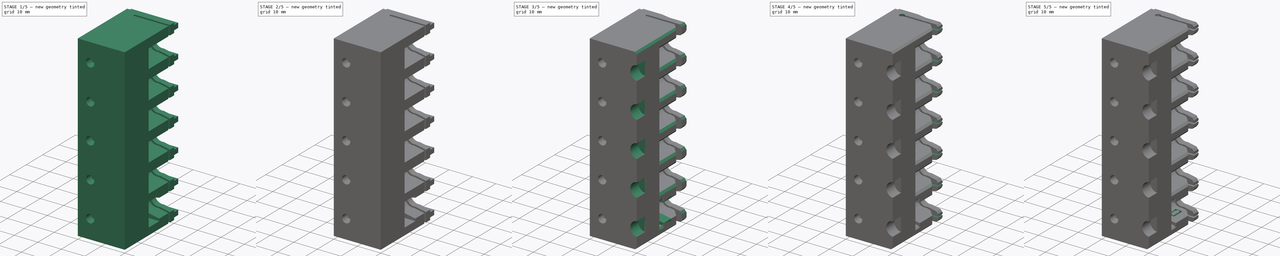
[diagram: build sequence overview — one tinted view per stage of 5, left to right]
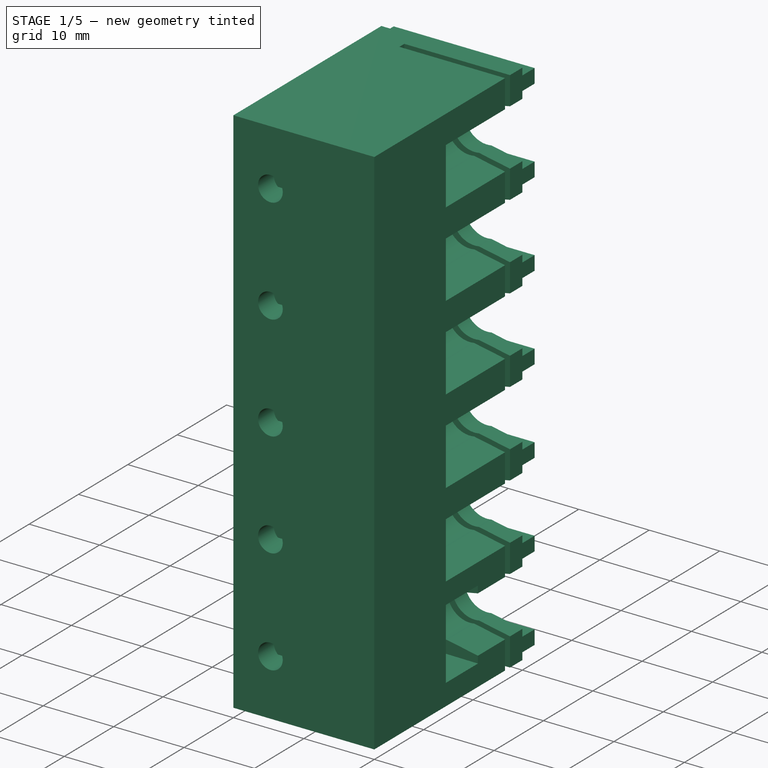
[diagram: stage 1 of 5 — iso view after this stage's code; geometry added in this stage tinted green]
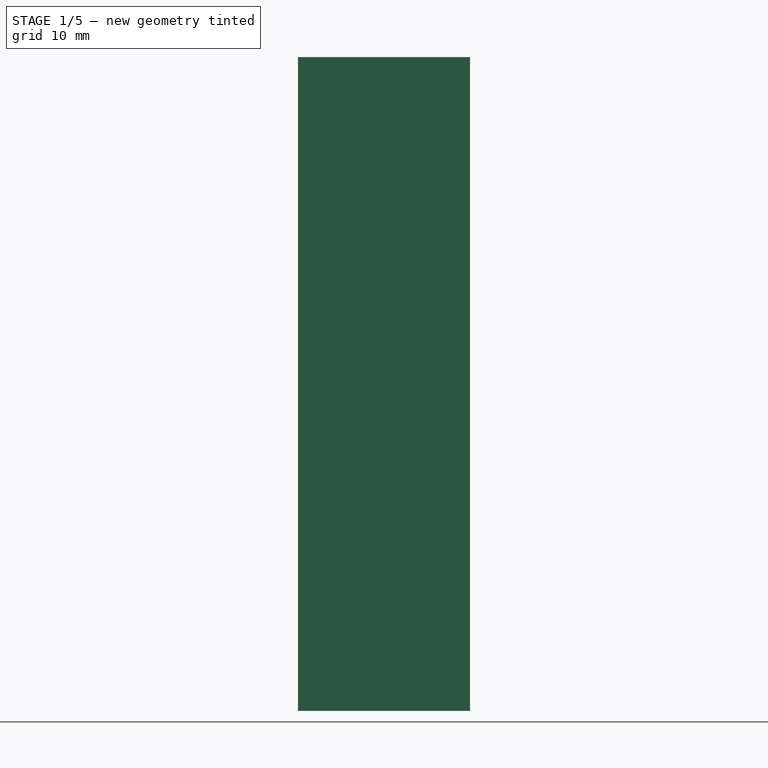
[diagram: stage 1 of 5 — front view after this stage's code; geometry added in this stage tinted green]
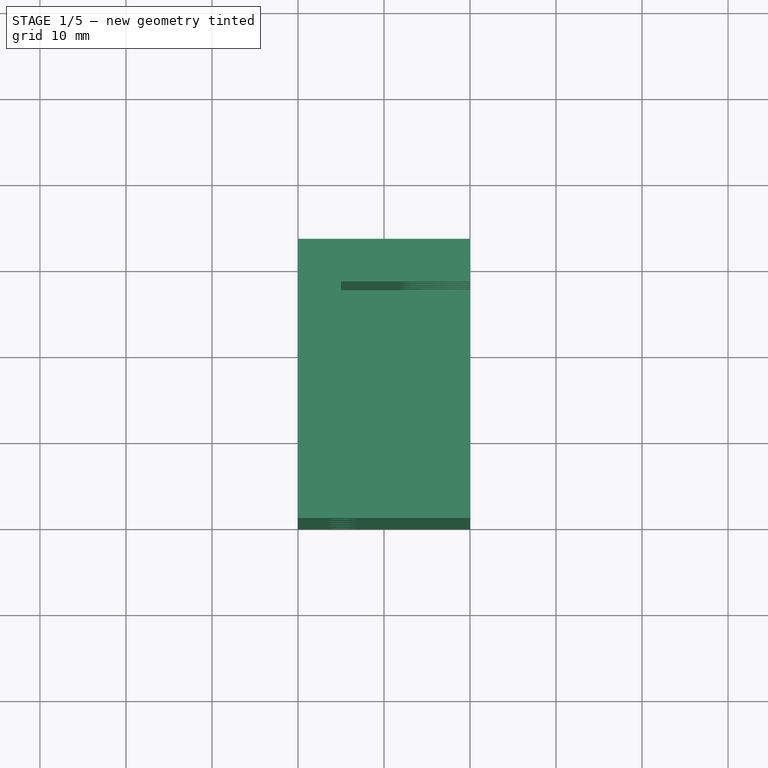
[diagram: stage 1 of 5 — top view after this stage's code; geometry added in this stage tinted green]
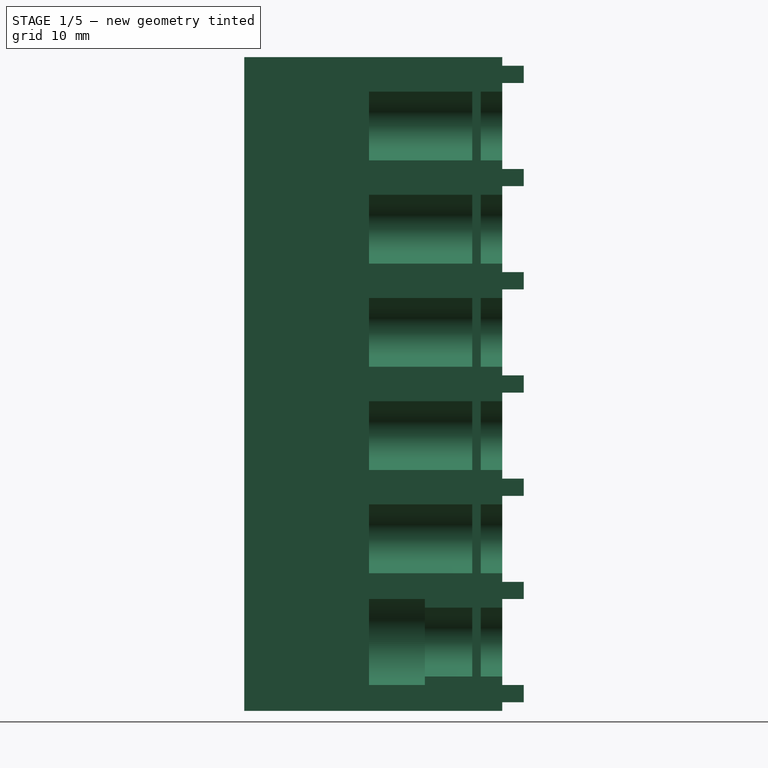
[diagram: stage 1 of 5 — right view after this stage's code; geometry added in this stage tinted green]
FCSTD DOCUMENT  (FreeCAD 0.20R29410 (Git))
Label: nozzle-rack
License: All rights reserved
LicenseURL: http://en.wikipedia.org/wiki/All_rights_reserved
objects: PartDesign::Pocket×18, Sketcher::SketchObject×17, PartDesign::Plane×7, PartDesign::Pad×6, Part::Part2DObjectPython×6, PartDesign::Chamfer×2, PartDesign::Mirrored×2, PartDesign::Body×1
note: 85 computed .brp shape members not serialized (recipe doc carries the construction recipe); baked Part::Feature solids carry a one-line shape summary decoded from their .brp

FEATURE [Sketcher::SketchObject] Sketch
  FullyConstrained = true
  MapMode = 5
  Support = -> [XY_Plane]
  sketch-geometry (8):
    g0: LineSegment StartX=20 StartY=30 StartZ=0 EndX=0 EndY=30 EndZ=0
    g1: LineSegment StartX=0 StartY=30 StartZ=0 EndX=0 EndY=0 EndZ=0
    g2: LineSegment StartX=0 StartY=0 StartZ=0 EndX=20 EndY=0 EndZ=0
    g3: LineSegment StartX=20 StartY=26.5 StartZ=0 EndX=5 EndY=26.5 EndZ=0
    g4: LineSegment StartX=5 StartY=26.5 StartZ=0 EndX=5 EndY=27.5 EndZ=0
    g5: LineSegment StartX=5 StartY=27.5 StartZ=0 EndX=20 EndY=27.5 EndZ=0
    g6: LineSegment StartX=20 StartY=27.5 StartZ=0 EndX=20 EndY=30 EndZ=0
    g7: LineSegment StartX=20 StartY=26.5 StartZ=0 EndX=20 EndY=0 EndZ=0
  constraints (23):
    c: Coincident(g0,g1)
    c: Horizontal(g0)
    c: Vertical(g1)
    c: Distance(g1) = 30
    c: Coincident(g2,g1)
    c: Horizontal(g2)
    c: Coincident(g-1,g1)
    c: Horizontal(g3)
    c: Coincident(g4,g3)
    c: Vertical(g4)
    c: Coincident(g5,g4)
    c: Horizontal(g5)
    c: Coincident(g6,g5)
    c: Coincident(g6,g0)
    c: Vertical(g6)
    c: Distance(g6) = 2.5
    c: Distance(g4) = 1
    c: Distance(g0) = 20
    c: Distance(g2) = 20
    c: Coincident(g7,g3)
    c: Coincident(g7,g2)
    c: Vertical(g7)
    c: DistanceX(g3,g3) = 15
FEATURE [PartDesign::Pad] Pad
  AllowMultiFace = false
  Direction = (0,0,1)
  Length = 76
  Length2 = 100
  Profile = -> Sketch
  Refine = true
  Type = 0
FEATURE [Sketcher::SketchObject] Sketch001  label="NozzleCutouts"
  ExternalGeometry = -> [Pad]
  FullyConstrained = true
  MapMode = 5
  Placement = pos=(0,30,0) rot=(0,0.707107,0.707107;3.14159rad)
  Support = -> [Pad]
  sketch-geometry (30):
    g0: LineSegment StartX=-15.6 StartY=16.8568 StartZ=0 EndX=-20 EndY=16 EndZ=0
    g1: LineSegment StartX=-15.6 StartY=23.1432 StartZ=0 EndX=-20 EndY=24 EndZ=0
    g2: LineSegment StartX=-15.6 StartY=28.8568 StartZ=0 EndX=-20 EndY=28 EndZ=0
    g3: LineSegment StartX=-15.6 StartY=35.1432 StartZ=0 EndX=-20 EndY=36 EndZ=0
    g4: LineSegment StartX=-15.6 StartY=40.8568 StartZ=0 EndX=-20 EndY=40 EndZ=0
    g5: LineSegment StartX=-15.6 StartY=47.1432 StartZ=0 EndX=-20 EndY=48 EndZ=0
    g6: ArcOfCircle CenterX=-15 CenterY=20 CenterZ=0 NormalX=0 NormalY=0 NormalZ=1 AngleXU=0 Radius=3.2 StartAngle=4.52377 EndAngle=8.0426
    g7: ArcOfCircle CenterX=-15 CenterY=8 CenterZ=0 NormalX=0 NormalY=0 NormalZ=1 AngleXU=0 Radius=3.2 StartAngle=4.52377 EndAngle=8.0426
    g8: ArcOfCircle CenterX=-15 CenterY=32 CenterZ=0 NormalX=0 NormalY=0 NormalZ=1 AngleXU=0 Radius=3.2 StartAngle=4.52377 EndAngle=8.0426
    g9: ArcOfCircle CenterX=-15 CenterY=44 CenterZ=0 NormalX=0 NormalY=0 NormalZ=1 AngleXU=0 Radius=3.2 StartAngle=4.52377 EndAngle=8.0426
    g10: LineSegment StartX=-20 StartY=48 StartZ=0 EndX=-20 EndY=40 EndZ=0
    g11: LineSegment StartX=-20 StartY=36 StartZ=0 EndX=-20 EndY=28 EndZ=0
    g12: LineSegment StartX=-20 StartY=24 StartZ=0 EndX=-20 EndY=16 EndZ=0
    g13: LineSegment StartX=-20 StartY=12 StartZ=0 EndX=-20 EndY=4 EndZ=0
    g14: LineSegment StartX=-15 StartY=8 StartZ=0 EndX=-15 EndY=44 EndZ=0
    g15: LineSegment StartX=-20 StartY=12 StartZ=0 EndX=-15.6 EndY=11.1432 EndZ=0
    g16: LineSegment StartX=-20 StartY=4 StartZ=0 EndX=-15.6 EndY=4.85675 EndZ=0
    g17: LineSegment StartX=-15 StartY=8 StartZ=0 EndX=-20 EndY=8 EndZ=0
    g18: LineSegment StartX=-15.6 StartY=4.85675 StartZ=0 EndX=-15.6 EndY=47.1432 EndZ=0
    g19: LineSegment StartX=-15 StartY=20 StartZ=0 EndX=-20 EndY=20 EndZ=0
    g20: LineSegment StartX=-15 StartY=32 StartZ=0 EndX=-20 EndY=32 EndZ=0
    g21: LineSegment StartX=-15 StartY=44 StartZ=0 EndX=-20 EndY=44 EndZ=0
    g22: LineSegment StartX=-20 StartY=60 StartZ=0 EndX=-20 EndY=52 EndZ=0
    g23: LineSegment StartX=-15.6 StartY=59.1432 StartZ=0 EndX=-20 EndY=60 EndZ=0
    g24: LineSegment StartX=-15.6 StartY=52.8568 StartZ=0 EndX=-20 EndY=52 EndZ=0
    g25: ArcOfCircle CenterX=-15 CenterY=56 CenterZ=0 NormalX=0 NormalY=0 NormalZ=1 AngleXU=0 Radius=3.2 StartAngle=4.52377 EndAngle=8.0426
    g26: LineSegment StartX=-15.6 StartY=64.8568 StartZ=0 EndX=-20 EndY=64 EndZ=0
    g27: ArcOfCircle CenterX=-15 CenterY=68 CenterZ=0 NormalX=0 NormalY=0 NormalZ=1 AngleXU=0 Radius=3.2 StartAngle=4.52377 EndAngle=8.0426
    g28: LineSegment StartX=-15.6 StartY=71.1432 StartZ=0 EndX=-20 EndY=72 EndZ=0
    g29: LineSegment StartX=-20 StartY=72 StartZ=0 EndX=-20 EndY=64 EndZ=0
  constraints (90):
    c: Coincident(g6,g1)
    c: Coincident(g6,g0)
    c: Diameter(g6) = 6.4
    c: Coincident(g8,g3)
    c: Coincident(g8,g2)
    c: Coincident(g9,g5)
    c: Coincident(g9,g4)
    c: Diameter(g7) = 6.4
    c: Diameter(g8) = 6.4
    c: Diameter(g9) = 6.4
    c: Coincident(g10,g5)
    c: Coincident(g10,g4)
    c: Coincident(g11,g3)
    c: Coincident(g11,g2)
    c: Coincident(g12,g1)
    c: Coincident(g12,g0)
    c: DistanceX(g7,g-1) = 15
    c: Vertical(g11)
    c: Vertical(g12)
    c: Vertical(g13)
    c: Vertical(g10)
    c: PointOnObject(g2,g13)
    c: PointOnObject(g0,g13)
    c: DistanceX(g13,g-1) = 20
    c: DistanceY(g-1,g6) = 20
    c: Coincident(g14,g7)
    c: Coincident(g14,g9)
    c: Vertical(g14)
    c: PointOnObject(g8,g14)
    c: PointOnObject(g6,g14)
    c: DistanceY(g-1,g7) = 8
    c: Coincident(g15,g13)
    c: Coincident(g16,g13)
    c: Coincident(g7,g15)
    c: Coincident(g7,g16)
    c: DistanceY(g13,g13) = 8
    c: Coincident(g17,g7)
    c: PointOnObject(g17,g13)
    c: Symmetric(g13,g13,g17)
    c: Coincident(g18,g7)
    c: Vertical(g18)
    c: DistanceX(g7,g7) = 0.6
    c: PointOnObject(g7,g18)
    c: PointOnObject(g1,g18)
    c: PointOnObject(g0,g18)
    c: DistanceY(g12,g12) = 8
    c: Coincident(g19,g6)
    c: PointOnObject(g19,g12)
    c: Symmetric(g1,g0,g19)
    c: PointOnObject(g3,g18)
    c: PointOnObject(g2,g18)
    c: PointOnObject(g20,g11)
    c: DistanceY(g11,g11) = 8
    c: Symmetric(g3,g2,g20)
    c: Coincident(g20,g8)
    c: PointOnObject(g4,g18)
    c: Coincident(g5,g18)
    c: Coincident(g21,g9)
    c: PointOnObject(g21,g10)
    c: DistanceY(g10,g10) = 8
    c: Symmetric(g5,g4,g21)
    c: Coincident(g25,g23)
    c: Coincident(g25,g24)
    c: Coincident(g22,g23)
    c: Coincident(g22,g24)
    c: Vertical(g22)
    c: Equal(g10,g22) = 11
    c: Coincident(g27,g28)
    c: Coincident(g27,g26)
    c: Coincident(g29,g28)
    c: Coincident(g29,g26)
    c: Vertical(g29)
    c: Diameter(g27) = 6.4
    c: Vertical(g24,g5)
    c: Parallel(g28,g23)
    c: Parallel(g23,g5)
    c: Diameter(g25) = 6.4
    c: Vertical(g24,g23)
    c: Vertical(g5,g26)
    c: Vertical(g26,g27)
    c: Vertical(g25,g27)
    c: Vertical(g27,g9)
    c: Parallel(g26,g24)
    c: DistanceY(g-4,g8) = 32
    c: DistanceY(g-4,g9) = 44
    c: DistanceY(g-4,g25) = 56
    c: DistanceY(g-4,g27) = 68
    c: PointOnObject(g5,g-4)
    c: PointOnObject(g22,g-4)
    c: PointOnObject(g28,g-4)
FEATURE [PartDesign::Pocket] Pocket  label="pkt_NozzleCutouts"
  AllowMultiFace = false
  BaseFeature = -> Pad
  Direction = (0,-1,2e-16)
  Length = 15.5
  Length2 = 100
  Profile = -> Sketch001
  Refine = true
  Type = 0
FEATURE [Sketcher::SketchObject] Sketch005  label="M3Holes"
  FullyConstrained = true
  MapMode = 2
  Placement = pos=(0,0,0) rot=(0.57735,0.57735,0.57735;4.18879rad)
  Support = -> [Z_Axis]
  sketch-geometry (6):
    g0: Circle CenterX=68 CenterY=5.25 CenterZ=0 NormalX=0 NormalY=0 NormalZ=1 AngleXU=0 Radius=1.75
    g1: Circle CenterX=8 CenterY=5.25 CenterZ=0 NormalX=0 NormalY=0 NormalZ=1 AngleXU=0 Radius=1.75
    g2: Circle CenterX=38 CenterY=5.25 CenterZ=0 NormalX=0 NormalY=0 NormalZ=1 AngleXU=0 Radius=1.75
    g3: LineSegment StartX=8 StartY=5.25 StartZ=0 EndX=68 EndY=5.25 EndZ=0
    g4: Circle CenterX=23 CenterY=5.25 CenterZ=0 NormalX=0 NormalY=0 NormalZ=1 AngleXU=0 Radius=1.75
    g5: Circle CenterX=53 CenterY=5.25 CenterZ=0 NormalX=0 NormalY=0 NormalZ=1 AngleXU=0 Radius=1.75
  constraints (17):
    c: Diameter(g0) = 3.5
    c: Diameter(g1) = 3.5
    c: Diameter(g2) = 3.5
    c: DistanceY(g-1,g1) = 5.25
    c: DistanceX(g-1,g1) = 8
    c: DistanceX(g-1,g2) = 38
    c: DistanceX(g-1,g0) = 68
    c: Coincident(g3,g1)
    c: Horizontal(g3)
    c: Coincident(g0,g3)
    c: PointOnObject(g2,g3)
    c: DistanceX(g1,g2) = 30
    c: DistanceX(g2,g0) = 30
    c: Equal(g5,g4)
    c: Equal(g4,g1)
    c: Symmetric(g4,g5,g2)
    c: Symmetric(g1,g2,g4)
FEATURE [Sketcher::SketchObject] Sketch006  label="M3SquareNutCutOut"
  ExternalGeometry = -> [Sketch005]
  FullyConstrained = true
  MapMode = 5
  Placement = pos=(0,0,0) rot=(0.57735,-0.57735,-0.57735;2.0944rad)
  sketch-geometry (23):
    g0: LineSegment StartX=-6 StartY=70.9 StartZ=0 EndX=-3.2 EndY=70.9 EndZ=0
    g1: LineSegment StartX=-3.2 StartY=70.9 StartZ=0 EndX=-3.2 EndY=65.1 EndZ=0
    g2: LineSegment StartX=-3.2 StartY=65.1 StartZ=0 EndX=-6 EndY=65.1 EndZ=0
    g3: LineSegment StartX=-6 StartY=65.1 StartZ=0 EndX=-6 EndY=70.9 EndZ=0
    g4: LineSegment StartX=-6 StartY=40.9 StartZ=0 EndX=-3.2 EndY=40.9 EndZ=0
    g5: LineSegment StartX=-3.2 StartY=40.9 StartZ=0 EndX=-3.2 EndY=35.1 EndZ=0
    g6: LineSegment StartX=-3.2 StartY=35.1 StartZ=0 EndX=-6 EndY=35.1 EndZ=0
    g7: LineSegment StartX=-6 StartY=35.1 StartZ=0 EndX=-6 EndY=40.9 EndZ=0
    g8: LineSegment StartX=-6 StartY=10.9 StartZ=0 EndX=-3.2 EndY=10.9 EndZ=0
    g9: LineSegment StartX=-3.2 StartY=10.9 StartZ=0 EndX=-3.2 EndY=5.1 EndZ=0
    g10: LineSegment StartX=-3.2 StartY=5.1 StartZ=0 EndX=-6 EndY=5.1 EndZ=0
    g11: LineSegment StartX=-6 StartY=5.1 StartZ=0 EndX=-6 EndY=10.9 EndZ=0
    g12: LineSegment StartX=0 StartY=8 StartZ=0 EndX=20 EndY=8 EndZ=0
    g13: LineSegment StartX=0 StartY=38 StartZ=0 EndX=20 EndY=38 EndZ=0
    g14: LineSegment StartX=0 StartY=68 StartZ=0 EndX=20 EndY=68 EndZ=0
    g15: LineSegment StartX=-6 StartY=55.9 StartZ=0 EndX=-3.2 EndY=55.9 EndZ=0
    g16: LineSegment StartX=-3.2 StartY=55.9 StartZ=0 EndX=-3.2 EndY=50.1 EndZ=0
    g17: LineSegment StartX=-3.2 StartY=50.1 StartZ=0 EndX=-6 EndY=50.1 EndZ=0
    g18: LineSegment StartX=-6 StartY=50.1 StartZ=0 EndX=-6 EndY=55.9 EndZ=0
    g19: LineSegment StartX=-6 StartY=25.9 StartZ=0 EndX=-3.2 EndY=25.9 EndZ=0
    g20: LineSegment StartX=-3.2 StartY=25.9 StartZ=0 EndX=-3.2 EndY=20.1 EndZ=0
    g21: LineSegment StartX=-3.2 StartY=20.1 StartZ=0 EndX=-6 EndY=20.1 EndZ=0
    g22: LineSegment StartX=-6 StartY=20.1 StartZ=0 EndX=-6 EndY=25.9 EndZ=0
  constraints (63):
    c: Coincident(g0,g1)
    c: Coincident(g1,g2)
    c: Coincident(g2,g3)
    c: Coincident(g3,g0)
    c: Horizontal(g0)
    c: Horizontal(g2)
    c: Vertical(g1)
    c: Vertical(g3)
    c: Coincident(g4,g5)
    c: Coincident(g5,g6)
    c: Coincident(g6,g7)
    c: Coincident(g7,g4)
    c: Horizontal(g4)
    c: Horizontal(g6)
    c: Vertical(g5)
    c: Vertical(g7)
    c: Coincident(g8,g9)
    c: Coincident(g9,g10)
    c: Coincident(g10,g11)
    c: Coincident(g11,g8)
    c: Horizontal(g8)
    c: Horizontal(g10)
    c: Vertical(g9)
    c: Vertical(g11)
    c: Equal(g1,g5)
    c: Equal(g5,g9)
    c: Equal(g2,g6)
    c: Equal(g6,g10)
    c: DistanceX(g-1,g10) = -6
    c: DistanceX(g8,g8) = 2.8
    c: PointOnObject(g12,g-2)
    c: PointOnObject(g13,g-2)
    c: PointOnObject(g14,g-2)
    c: DistanceY(g-1,g12) = 8
    c: DistanceY(g-1,g13) = 38
    c: DistanceY(g-1,g14) = 68
    c: Symmetric(g10,g8,g12)
    c: Symmetric(g6,g4,g13)
    c: Symmetric(g2,g0,g14)
    c: DistanceY(g5,g5) = 5.8
    c: Equal(g12,g13)
    c: Equal(g13,g14)
    c: DistanceX(g14,g14) = 20
    c: Coincident(g15,g16)
    c: Coincident(g16,g17)
    c: Coincident(g17,g18)
    c: Coincident(g18,g15)
    c: Horizontal(g15)
    c: Horizontal(g17)
    c: Tangent(g16,g5)
    c: Tangent(g18,g7)
    c: Symmetric(g1,g5,g16)
    c: Equal(g18,g7)
    c: Coincident(g19,g20)
    c: Coincident(g20,g21)
    c: Coincident(g21,g22)
    c: Coincident(g22,g19)
    c: Horizontal(g19)
    c: Horizontal(g21)
    c: Tangent(g22,g7)
    c: Tangent(g20,g5)
    c: Equal(g22,g7)
    c: Symmetric(g8,g4,g19)
FEATURE [Part::Part2DObjectPython] ShapeString002  label="N045"  # Draft 2D object (typed FeaturePython)
  FontFile = ../../lib/fonts/RobotoMono-VariableFont_weight.ttf
  Placement = pos=(1,30,70) rot=(-1,0,0;1.5708rad)
  Size = 5
  String = 45
  Tracking = 0
FEATURE [Part::Part2DObjectPython] ShapeString003  label="N08"  # Draft 2D object (typed FeaturePython)
  FontFile = ../../lib/fonts/RobotoMono-VariableFont_weight.ttf
  Placement = pos=(1,30,58) rot=(-1,0,0;1.5708rad)
  Size = 5
  String = 8
  Tracking = 0
FEATURE [Part::Part2DObjectPython] ShapeString004  label="N14"  # Draft 2D object (typed FeaturePython)
  FontFile = ../../lib/fonts/RobotoMono-VariableFont_weight.ttf
  Placement = pos=(1,30,46) rot=(-1,0,0;1.5708rad)
  Size = 5
  String = 14
  Tracking = 0
FEATURE [Part::Part2DObjectPython] ShapeString005  label="N24"  # Draft 2D object (typed FeaturePython)
  FontFile = ../../lib/fonts/RobotoMono-VariableFont_weight.ttf
  Placement = pos=(1,30,34) rot=(-1,0,0;1.5708rad)
  Size = 5
  String = 24
  Tracking = 0
FEATURE [Part::Part2DObjectPython] ShapeString006  label="N40"  # Draft 2D object (typed FeaturePython)
  FontFile = ../../lib/fonts/RobotoMono-VariableFont_weight.ttf
  Placement = pos=(1,30,22) rot=(-1,0,0;1.5708rad)
  Size = 5
  String = 40
  Tracking = 0
FEATURE [Part::Part2DObjectPython] ShapeString007  label="N75"  # Draft 2D object (typed FeaturePython)
  FontFile = ../../lib/fonts/RobotoMono-VariableFont_weight.ttf
  Placement = pos=(1,30,10) rot=(-1,0,0;1.5708rad)
  Size = 5
  String = 75
  Tracking = 0
FEATURE [Sketcher::SketchObject] Sketch008  label="NozzleCutouts001"
  AttachmentOffset = pos=(0,0,-9) rot=(0,0,1;0rad)
  ExternalGeometry = -> [Pad]
  FullyConstrained = false
  MapMode = 5
  Placement = pos=(0,21,2e-15) rot=(0,0.707107,0.707107;3.14159rad)
  Support = -> [Pad]
  sketch-geometry (7):
    g0: ArcOfCircle CenterX=-15 CenterY=8 CenterZ=0 NormalX=0 NormalY=0 NormalZ=1 AngleXU=0 Radius=5 StartAngle=4.5921 EndAngle=7.97427
    g1: LineSegment StartX=-20 StartY=13 StartZ=0 EndX=-20 EndY=3 EndZ=0
    g2: LineSegment StartX=-15 StartY=8 StartZ=0 EndX=-15 EndY=44 EndZ=0
    g3: LineSegment StartX=-20 StartY=13 StartZ=0 EndX=-15.6 EndY=12.9639 EndZ=0
    g4: LineSegment StartX=-20 StartY=3 StartZ=0 EndX=-15.6 EndY=3.03613 EndZ=0
    g5: LineSegment StartX=-15 StartY=8 StartZ=0 EndX=-20 EndY=8 EndZ=0
    g6: LineSegment StartX=-15.6 StartY=3.03613 StartZ=0 EndX=-15.6 EndY=47.1432 EndZ=0
  constraints (19):
    c: Diameter(g0) = 10
    c: DistanceX(g0,g-1) = 15
    c: Vertical(g1)
    c: DistanceX(g1,g-1) = 20
    c: Coincident(g2,g0)
    c: Vertical(g2)
    c: DistanceY(g-1,g0) = 8
    c: Coincident(g3,g1)
    c: Coincident(g4,g1)
    c: Coincident(g0,g3)
    c: Coincident(g0,g4)
    c: DistanceY(g1,g1) = 10
    c: Coincident(g5,g0)
    c: PointOnObject(g5,g1)
    c: Symmetric(g1,g1,g5)
    c: Coincident(g6,g0)
    c: Vertical(g6)
    c: DistanceX(g0,g0) = 0.6
    c: PointOnObject(g0,g6)
FEATURE [PartDesign::Pocket] Pocket015  label="N75_Large_Cutout"
  BaseFeature = -> Pocket
  Direction = (0,-1,2e-16)
  Length = 6.5
  Length2 = 100
  Profile = -> Sketch008
  Type = 0
FEATURE [PartDesign::Pocket] Pocket003  label="pkt_m3"
  AllowMultiFace = false
  BaseFeature = -> Pocket015
  Direction = (-4e-16,-1,4e-16)
  Length = 10
  Length2 = 100
  Profile = -> Sketch005
  Refine = true
  Reversed = true
  Type = 0
FEATURE [PartDesign::Plane] DatumPlane  label="Datum"
  Length = 72.7301
  MapMode = 5
  Placement = pos=(0,0,0) rot=(0.57735,-0.57735,-0.57735;2.0944rad)
  ResizeMode = 0
  Support = -> [Pocket003]
  Width = 116.24
FEATURE [PartDesign::Plane] DatumPlane001
  Length = 64.2127
  MapMode = 5
  Placement = pos=(0,0,0) rot=(1,0,0;1.5708rad)
  ResizeMode = 0
  Support = -> [Pocket003]
  Width = 115.213
FEATURE [PartDesign::Pocket] Pocket006  label="pkt_nuts"
  BaseFeature = -> Pocket003
  Direction = (1,0,0)
  Length = 9.5
  Length2 = 100
  Profile = -> Sketch006
  Type = 0
FEATURE [Sketcher::SketchObject] Sketch007  label="Ribs"
  FullyConstrained = true
  MapMode = 5
  Placement = pos=(0,0,0) rot=(0.57735,-0.57735,-0.57735;2.0944rad)
  Support = -> [DatumPlane]
  sketch-geometry (35):
    g0: LineSegment StartX=-29.99 StartY=15 StartZ=0 EndX=-32.49 EndY=15 EndZ=0
    g1: LineSegment StartX=-32.49 StartY=15 StartZ=0 EndX=-32.49 EndY=13 EndZ=0
    g2: LineSegment StartX=-32.49 StartY=13 StartZ=0 EndX=-29.99 EndY=13 EndZ=0
    g3: LineSegment StartX=-29.99 StartY=13 StartZ=0 EndX=-29.99 EndY=15 EndZ=0
    g4: LineSegment StartX=-29.99 StartY=27 StartZ=0 EndX=-32.49 EndY=27 EndZ=0
    g5: LineSegment StartX=-32.49 StartY=27 StartZ=0 EndX=-32.49 EndY=25 EndZ=0
    g6: LineSegment StartX=-32.49 StartY=25 StartZ=0 EndX=-29.99 EndY=25 EndZ=0
    g7: LineSegment StartX=-29.99 StartY=25 StartZ=0 EndX=-29.99 EndY=27 EndZ=0
    g8: LineSegment StartX=-29.99 StartY=39 StartZ=0 EndX=-32.49 EndY=39 EndZ=0
    g9: LineSegment StartX=-32.49 StartY=39 StartZ=0 EndX=-32.49 EndY=37 EndZ=0
    g10: LineSegment StartX=-32.49 StartY=37 StartZ=0 EndX=-29.99 EndY=37 EndZ=0
    g11: LineSegment StartX=-29.99 StartY=37 StartZ=0 EndX=-29.99 EndY=39 EndZ=0
    g12: LineSegment StartX=-29.99 StartY=51 StartZ=0 EndX=-32.49 EndY=51 EndZ=0
    g13: LineSegment StartX=-32.49 StartY=51 StartZ=0 EndX=-32.49 EndY=49 EndZ=0
    g14: LineSegment StartX=-32.49 StartY=49 StartZ=0 EndX=-29.99 EndY=49 EndZ=0
    g15: LineSegment StartX=-29.99 StartY=49 StartZ=0 EndX=-29.99 EndY=51 EndZ=0
    g16: LineSegment StartX=-29.99 StartY=63 StartZ=0 EndX=-32.49 EndY=63 EndZ=0
    g17: LineSegment StartX=-32.49 StartY=63 StartZ=0 EndX=-32.49 EndY=61 EndZ=0
    g18: LineSegment StartX=-32.49 StartY=61 StartZ=0 EndX=-29.99 EndY=61 EndZ=0
    g19: LineSegment StartX=-29.99 StartY=61 StartZ=0 EndX=-29.99 EndY=63 EndZ=0
    g20: LineSegment StartX=-29.99 StartY=75 StartZ=0 EndX=-32.49 EndY=75 EndZ=0
    g21: LineSegment StartX=-32.49 StartY=75 StartZ=0 EndX=-32.49 EndY=73 EndZ=0
    g22: LineSegment StartX=-32.49 StartY=73 StartZ=0 EndX=-29.99 EndY=73 EndZ=0
    g23: LineSegment StartX=-29.99 StartY=73 StartZ=0 EndX=-29.99 EndY=75 EndZ=0
    g24: LineSegment StartX=-29.99 StartY=3 StartZ=0 EndX=-32.49 EndY=3 EndZ=0
    g25: LineSegment StartX=-32.49 StartY=3 StartZ=0 EndX=-32.49 EndY=1 EndZ=0
    g26: LineSegment StartX=-32.49 StartY=1 StartZ=0 EndX=-29.99 EndY=1 EndZ=0
    g27: LineSegment StartX=-29.99 StartY=1 StartZ=0 EndX=-29.99 EndY=3 EndZ=0
    g28: LineSegment StartX=-29.99 StartY=1 StartZ=0 EndX=-29.99 EndY=0 EndZ=0
    g29: LineSegment StartX=-29.99 StartY=3 StartZ=0 EndX=-29.99 EndY=13 EndZ=0
    g30: LineSegment StartX=-29.99 StartY=15 StartZ=0 EndX=-29.99 EndY=25 EndZ=0
    g31: LineSegment StartX=-29.99 StartY=27 StartZ=0 EndX=-29.99 EndY=37 EndZ=0
    g32: LineSegment StartX=-29.99 StartY=39 StartZ=0 EndX=-29.99 EndY=49 EndZ=0
    g33: LineSegment StartX=-29.99 StartY=51 StartZ=0 EndX=-29.99 EndY=61 EndZ=0
    g34: LineSegment StartX=-29.99 StartY=63 StartZ=0 EndX=-29.99 EndY=73 EndZ=0
  constraints (99):
    c: Coincident(g0,g1)
    c: Coincident(g1,g2)
    c: Coincident(g2,g3)
    c: Coincident(g3,g0)
    c: Horizontal(g0)
    c: Horizontal(g2)
    c: Vertical(g1)
    c: Vertical(g3)
    c: Coincident(g4,g5)
    c: Coincident(g5,g6)
    c: Coincident(g6,g7)
    c: Coincident(g7,g4)
    c: Horizontal(g4)
    c: Horizontal(g6)
    c: Vertical(g5)
    c: Vertical(g7)
    c: Coincident(g8,g9)
    c: Coincident(g9,g10)
    c: Coincident(g10,g11)
    c: Coincident(g11,g8)
    c: Horizontal(g8)
    c: Horizontal(g10)
    c: Vertical(g9)
    c: Vertical(g11)
    c: Coincident(g12,g13)
    c: Coincident(g13,g14)
    c: Coincident(g14,g15)
    c: Coincident(g15,g12)
    c: Horizontal(g12)
    c: Horizontal(g14)
    c: Vertical(g13)
    c: Vertical(g15)
    c: Coincident(g16,g17)
    c: Coincident(g17,g18)
    c: Coincident(g18,g19)
    c: Coincident(g19,g16)
    c: Horizontal(g16)
    c: Horizontal(g18)
    c: Vertical(g17)
    c: Vertical(g19)
    c: Coincident(g20,g21)
    c: Coincident(g21,g22)
    c: Coincident(g22,g23)
    c: Coincident(g23,g20)
    c: Horizontal(g20)
    c: Horizontal(g22)
    c: Vertical(g21)
    c: Vertical(g23)
    c: Coincident(g24,g25)
    c: Coincident(g25,g26)
    c: Coincident(g26,g27)
    c: Coincident(g27,g24)
    c: Horizontal(g24)
    c: Horizontal(g26)
    c: Vertical(g25)
    c: Vertical(g27)
    c: DistanceX(g22,g22) = 2.5
    c: Equal(g22,g18)
    c: Equal(g18,g14)
    c: Equal(g14,g10)
    c: Equal(g10,g6)
    c: Equal(g6,g2)
    c: Equal(g2,g26)
    c: DistanceY(g21,g21) = 2
    c: Equal(g21,g17)
    c: Equal(g17,g13)
    c: Equal(g13,g9)
    c: Equal(g9,g5)
    c: Equal(g5,g1)
    c: Equal(g1,g25)
    c: Coincident(g28,g26)
    c: PointOnObject(g28,g-1)
    c: Vertical(g28)
    c: Coincident(g29,g24)
    c: Coincident(g29,g2)
    c: Vertical(g29)
    c: Coincident(g30,g0)
    c: Coincident(g30,g6)
    c: Vertical(g30)
    c: Coincident(g31,g4)
    c: Coincident(g31,g10)
    c: Vertical(g31)
    c: Coincident(g32,g8)
    c: Coincident(g32,g14)
    c: Vertical(g32)
    c: Coincident(g33,g12)
    c: Coincident(g33,g18)
    c: Vertical(g33)
    c: Coincident(g34,g16)
    c: Coincident(g34,g22)
    c: Vertical(g34)
    c: DistanceY(g34,g34) = 10
    c: DistanceX(g28,g-1) = 29.99
    c: Equal(g34,g33)
    c: Equal(g33,g32)
    c: Equal(g32,g31)
    c: Equal(g31,g30)
    c: Equal(g30,g29)
    c: DistanceY(g28,g28) = 1
FEATURE [PartDesign::Pad] Pad001  label="P_RIBS"
  BaseFeature = -> Pocket006
  Direction = (-1,0,0)
  Length = 20
  Length2 = 100
  Profile = -> Sketch007
  Reversed = true
  Type = 0
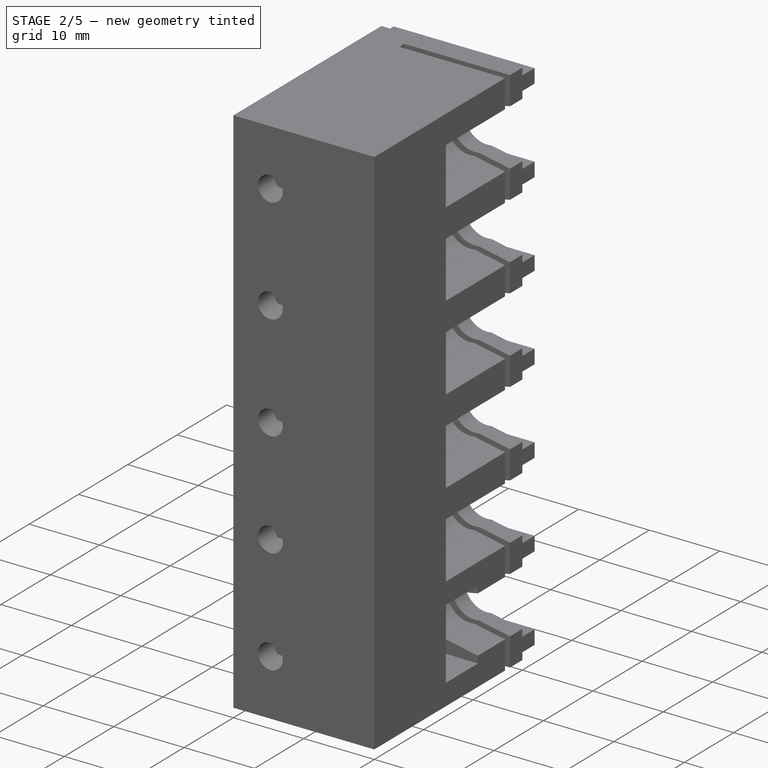
[diagram: stage 2 of 5 — iso view after this stage's code; geometry added in this stage tinted green]
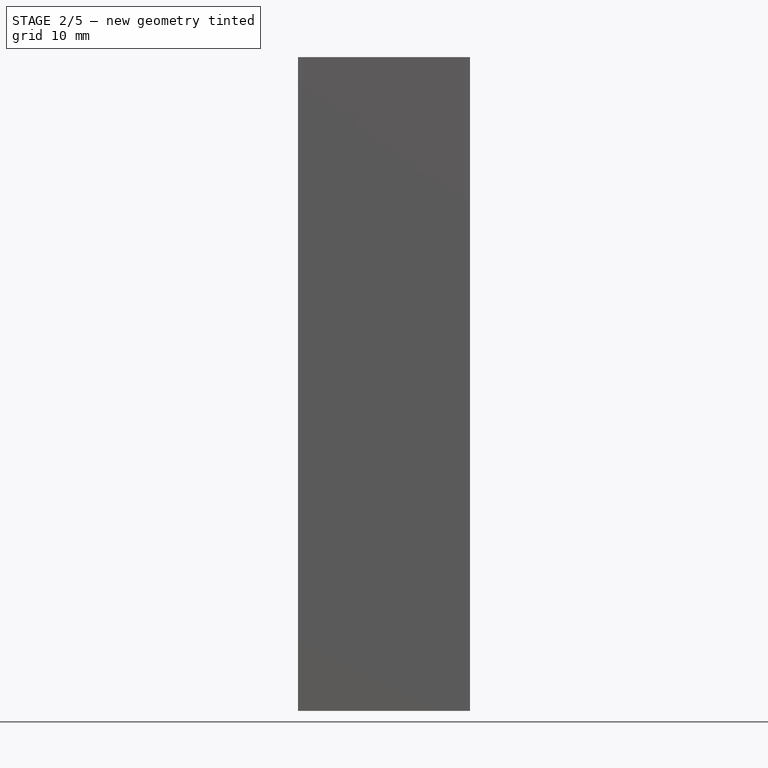
[diagram: stage 2 of 5 — front view after this stage's code; geometry added in this stage tinted green]
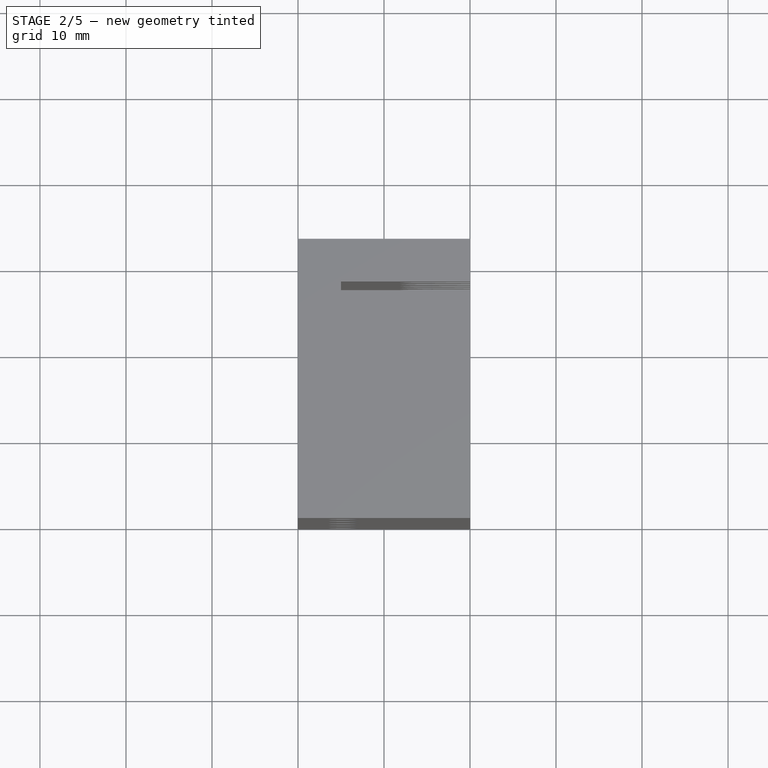
[diagram: stage 2 of 5 — top view after this stage's code; geometry added in this stage tinted green]
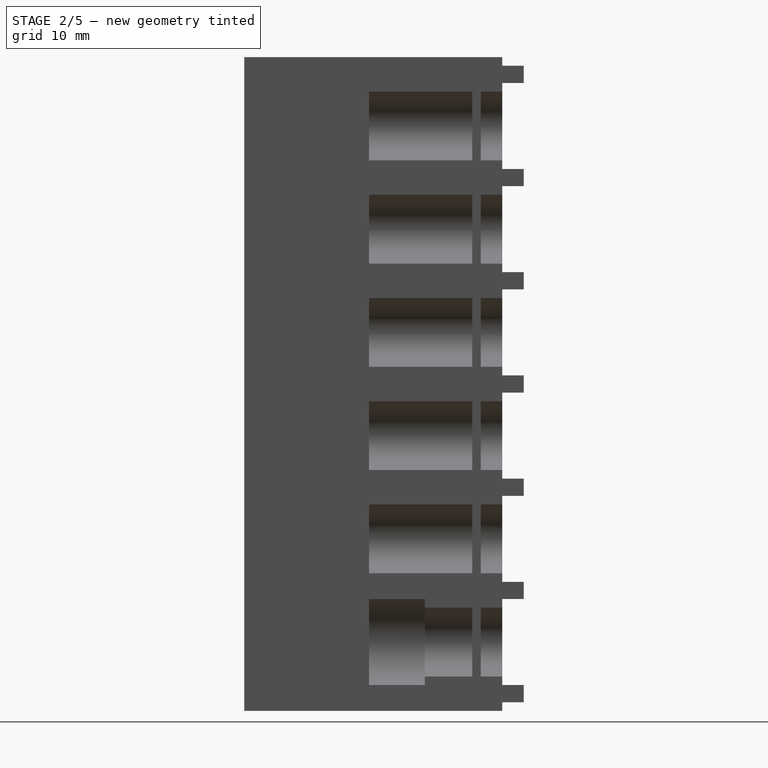
[diagram: stage 2 of 5 — right view after this stage's code; geometry added in this stage tinted green]
FEATURE [PartDesign::Pocket] Pocket008  label="P_N045"
  BaseFeature = -> Pad001
  Direction = (0,-1,-2e-16)
  Length = 0.6
  Length2 = 100
  Profile = -> ShapeString002
  Type = 0
FEATURE [PartDesign::Pocket] Pocket009  label="P_N08"
  BaseFeature = -> Pocket008
  Direction = (0,-1,-2e-16)
  Length = 0.6
  Length2 = 100
  Profile = -> ShapeString003
  Type = 0
FEATURE [PartDesign::Pocket] Pocket010  label="P_N14"
  BaseFeature = -> Pocket009
  Direction = (0,-1,-2e-16)
  Length = 0.6
  Length2 = 100
  Profile = -> ShapeString004
  Type = 0
FEATURE [PartDesign::Pocket] Pocket011  label="P_N75"
  BaseFeature = -> Pocket010
  Direction = (0,-1,-2e-16)
  Length = 0.6
  Length2 = 100
  Profile = -> ShapeString007
  Type = 0
FEATURE [PartDesign::Pocket] Pocket012  label="P_N40"
  BaseFeature = -> Pocket011
  Direction = (0,-1,-2e-16)
  Length = 0.6
  Length2 = 100
  Profile = -> ShapeString006
  Type = 0
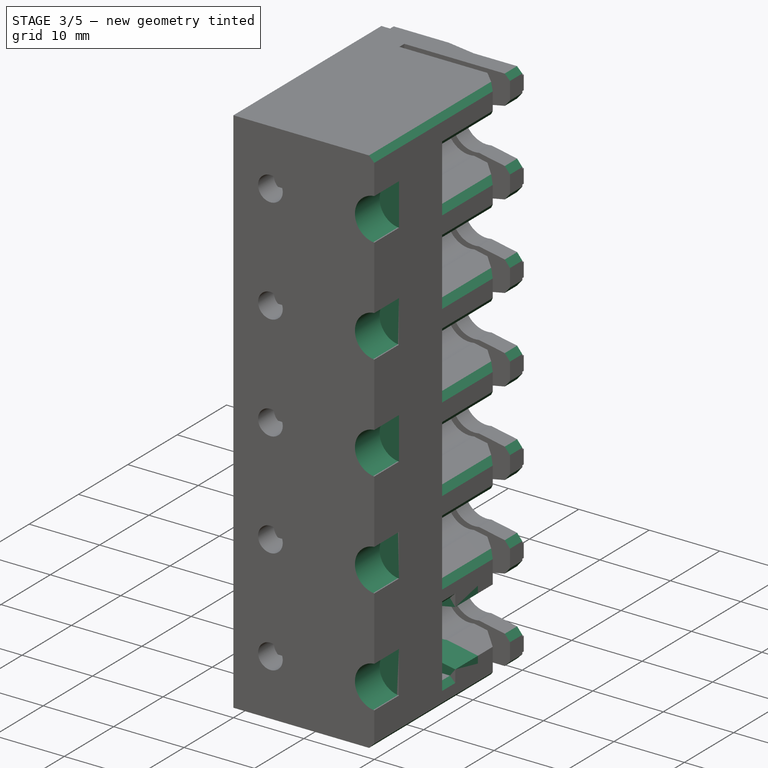
[diagram: stage 3 of 5 — iso view after this stage's code; geometry added in this stage tinted green]
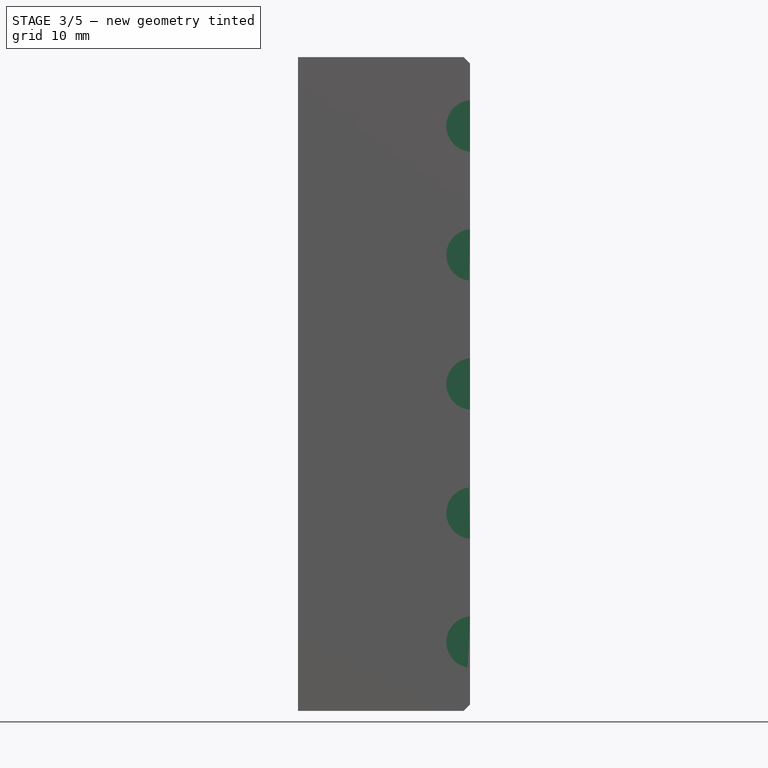
[diagram: stage 3 of 5 — front view after this stage's code; geometry added in this stage tinted green]
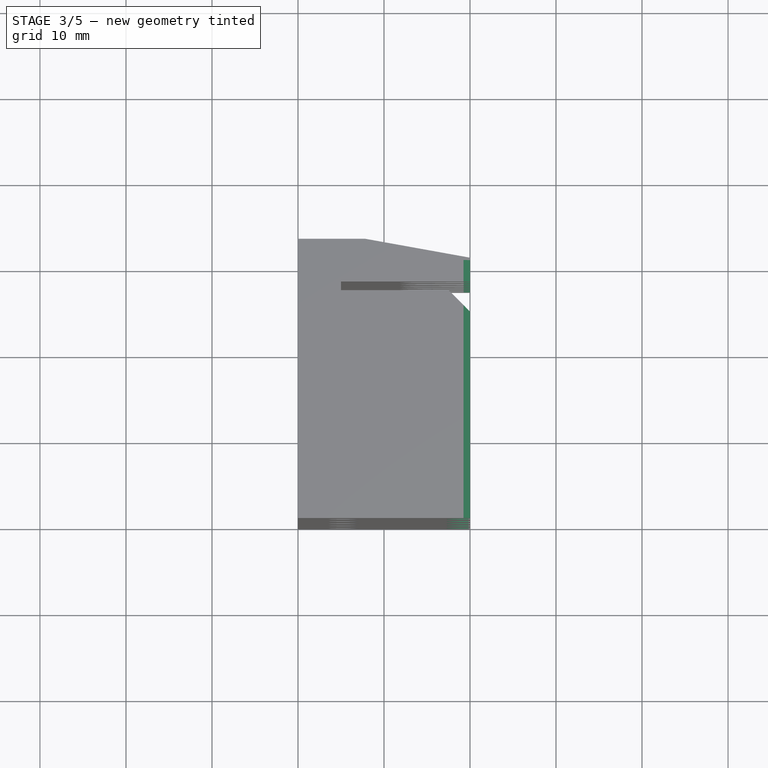
[diagram: stage 3 of 5 — top view after this stage's code; geometry added in this stage tinted green]
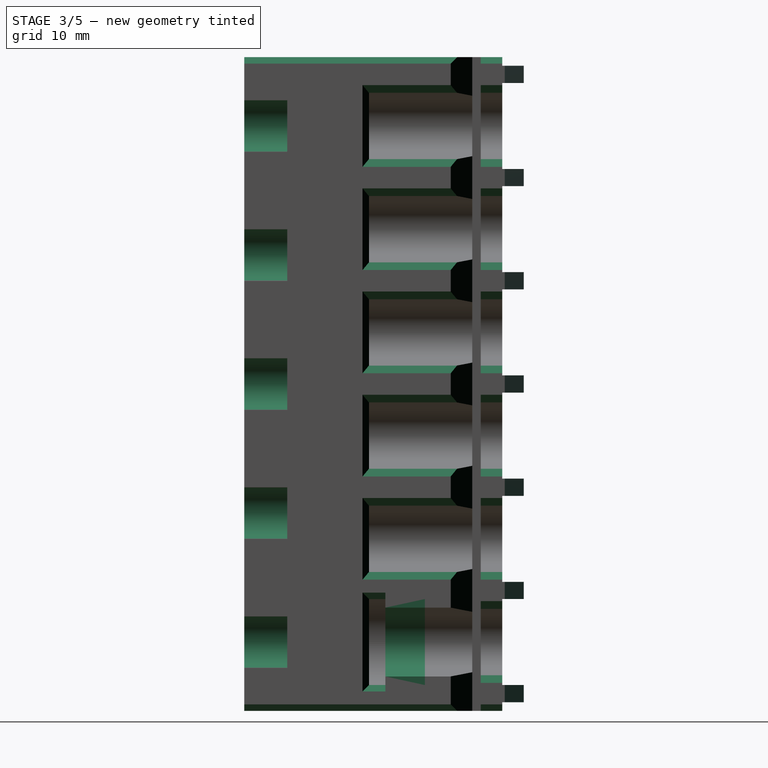
[diagram: stage 3 of 5 — right view after this stage's code; geometry added in this stage tinted green]
FEATURE [PartDesign::Pocket] Pocket013  label="P_N24"
  BaseFeature = -> Pocket012
  Direction = (0,-1,-2e-16)
  Length = 0.6
  Length2 = 100
  Profile = -> ShapeString005
  Type = 0
FEATURE [Sketcher::SketchObject] Sketch010
  ExternalGeometry = -> [Pocket013]
  FullyConstrained = true
  MapMode = 5
  Placement = pos=(0,0,0) rot=(1,0,0;1.5708rad)
  Support = -> [DatumPlane001]
  sketch-geometry (5):
    g0: Circle CenterX=20.25 CenterY=68 CenterZ=0 NormalX=0 NormalY=0 NormalZ=1 AngleXU=0 Radius=3
    g1: Circle CenterX=20.25 CenterY=53 CenterZ=0 NormalX=0 NormalY=0 NormalZ=1 AngleXU=0 Radius=3
    g2: Circle CenterX=20.25 CenterY=38 CenterZ=0 NormalX=0 NormalY=0 NormalZ=1 AngleXU=0 Radius=3
    g3: Circle CenterX=20.25 CenterY=23 CenterZ=0 NormalX=0 NormalY=0 NormalZ=1 AngleXU=0 Radius=3
    g4: Circle CenterX=20.25 CenterY=8 CenterZ=0 NormalX=0 NormalY=0 NormalZ=1 AngleXU=0 Radius=3
  constraints (15):
    c: Vertical(g2,g1)
    c: Vertical(g1,g0)
    c: Vertical(g0,g3)
    c: Vertical(g3,g4)
    c: Equal(g4,g3)
    c: Equal(g3,g2)
    c: Equal(g2,g1)
    c: Equal(g1,g0)
    c: Horizontal(g0,g-3)
    c: Horizontal(g-4,g1)
    c: Horizontal(g2,g-5)
    c: Horizontal(g3,g-6)
    c: Horizontal(g4,g-7)
    c: DistanceX(g-7,g4) = 15
    c: Diameter(g4) = 6
FEATURE [PartDesign::Pocket] Pocket017
  BaseFeature = -> Pocket013
  Direction = (0,1,-2e-16)
  Length = 5
  Length2 = 100
  Profile = -> Sketch010
  Type = 0
FEATURE [PartDesign::Chamfer] Chamfer  label="Chamfer_2.5mm"
  Angle = 45
  Base = -> Pocket017 [Edge4,Edge8,Edge12,Edge16,Edge20,Edge24,Edge28]
  BaseFeature = -> Pocket017
  ChamferType = 0
  FlipDirection = false
  Size = 2.5
  Size2 = 1
  SupportTransform = false
  UseAllEdges = false
FEATURE [Sketcher::SketchObject] Sketch009
  ExternalGeometry = -> [Pocket017]
  FullyConstrained = true
  MapMode = 5
  Support = -> [XY_Plane]
  sketch-geometry (3):
    g0: LineSegment StartX=20 StartY=30.29 StartZ=0 EndX=7.8 EndY=32.49 EndZ=0
    g1: LineSegment StartX=20 StartY=30.29 StartZ=0 EndX=20 EndY=32.49 EndZ=0
    g2: LineSegment StartX=7.8 StartY=32.49 StartZ=0 EndX=20 EndY=32.49 EndZ=0
  constraints (8):
    c: Coincident(g0,g1)
    c: DistanceX(g0,g1) = 12.2
    c: DistanceY(g0,g1) = 2.2
    c: Coincident(g2,g0)
    c: Coincident(g2,g1)
    c: Vertical(g1)
    c: Horizontal(g2)
    c: Coincident(g1,g-4)
FEATURE [PartDesign::Pocket] Pocket016
  BaseFeature = -> Chamfer
  Direction = (0,0,-1)
  Length = 5
  Length2 = 100
  Profile = -> Sketch009
  Reversed = true
  Type = 1
FEATURE [PartDesign::Chamfer] Chamfer001
  Angle = 45
  Base = -> Pocket016 [Edge48,Edge238,Edge309,Edge303,Edge297,Edge291,Edge285,Edge279,Edge273,Edge267,Edge261,Edge255,Edge179,Edge34,Edge45,Edge59,Edge69,Edge89,Edge79,Edge99,Edge105,Edge96,Edge86,Edge76,Edge66,Edge115,Edge111,Edge31,Edge137,Edge136,Edge122,Edge113,Edge127,Edge132]
  BaseFeature = -> Pocket016
  ChamferType = 0
  FlipDirection = false
  Size = 0.75
  Size2 = 1
  SupportTransform = false
  UseAllEdges = false
FEATURE [PartDesign::Plane] DatumPlane002  label="PrintPlane"
  Length = 72.7301
  MapMode = 5
  Placement = pos=(0,0,0) rot=(0.57735,-0.57735,-0.57735;2.0944rad)
  ResizeMode = 0
  Support = -> [Chamfer001]
  Width = 116.24
FEATURE [PartDesign::Plane] DatumPlane003
  Length = 64.2127
  MapMode = 5
  Placement = pos=(0,21,-8.2e-15) rot=(1,0,0;1.5708rad)
  ResizeMode = 0
  Support = -> [Chamfer001]
  Width = 115.213
FEATURE [Sketcher::SketchObject] Sketch011
  ExternalGeometry = -> [Chamfer001]
  FullyConstrained = true
  MapMode = 5
  Placement = pos=(0,21,-8.2e-15) rot=(1,0,0;1.5708rad)
  Support = -> [DatumPlane003]
  sketch-geometry (10):
    g0: LineSegment StartX=20 StartY=13.75 StartZ=0 EndX=20 EndY=12 EndZ=0
    g1: LineSegment StartX=20 StartY=12 StartZ=0 EndX=15.6 EndY=11.1432 EndZ=0
    g2: LineSegment StartX=20 StartY=13.75 StartZ=0 EndX=19.25 EndY=12.9938 EndZ=0
    g3: LineSegment StartX=19.25 StartY=12.9938 StartZ=0 EndX=15.6 EndY=12.9639 EndZ=0
    g4: LineSegment StartX=20 StartY=4 StartZ=0 EndX=15.6 EndY=4.85675 EndZ=0
    g5: LineSegment StartX=20 StartY=4 StartZ=0 EndX=20 EndY=2.25 EndZ=0
    g6: LineSegment StartX=20 StartY=2.25 StartZ=0 EndX=19.25 EndY=3.00616 EndZ=0
    g7: LineSegment StartX=19.25 StartY=3.00616 StartZ=0 EndX=15.6 EndY=3.03613 EndZ=0
    g8: ArcOfCircle CenterX=15 CenterY=8 CenterZ=0 NormalX=0 NormalY=0 NormalZ=1 AngleXU=0 Radius=3.2 StartAngle=1.38218 EndAngle=4.90101
    g9: ArcOfCircle CenterX=15 CenterY=8 CenterZ=0 NormalX=0 NormalY=0 NormalZ=1 AngleXU=0 Radius=5 StartAngle=1.45051 EndAngle=4.83268
  constraints (22):
    c: Coincident(g0,g-4)
    c: Coincident(g0,g-14)
    c: Coincident(g1,g-14)
    c: Coincident(g1,g-13)
    c: Coincident(g2,g-4)
    c: Coincident(g2,g-5)
    c: Coincident(g3,g-5)
    c: Coincident(g3,g-6)
    c: Coincident(g4,g-11)
    c: Coincident(g4,g-12)
    c: Coincident(g5,g-11)
    c: Coincident(g5,g-10)
    c: Coincident(g6,g-10)
    c: Coincident(g6,g-8)
    c: Coincident(g7,g-8)
    c: Coincident(g7,g-7)
    c: Coincident(g8,g-12)
    c: Coincident(g8,g-13)
    c: Coincident(g8,g-12)
    c: Coincident(g9,g-12)
    c: Coincident(g9,g-6)
    c: Coincident(g9,g-7)
FEATURE [PartDesign::Pad] Pad002
  BaseFeature = -> Chamfer001
  Direction = (0,-1,4e-16)
  Length = 4.6
  Length2 = 10
  Profile = -> Sketch011
  ReferenceAxis = -> Sketch011 [N_Axis]
  Type = 0
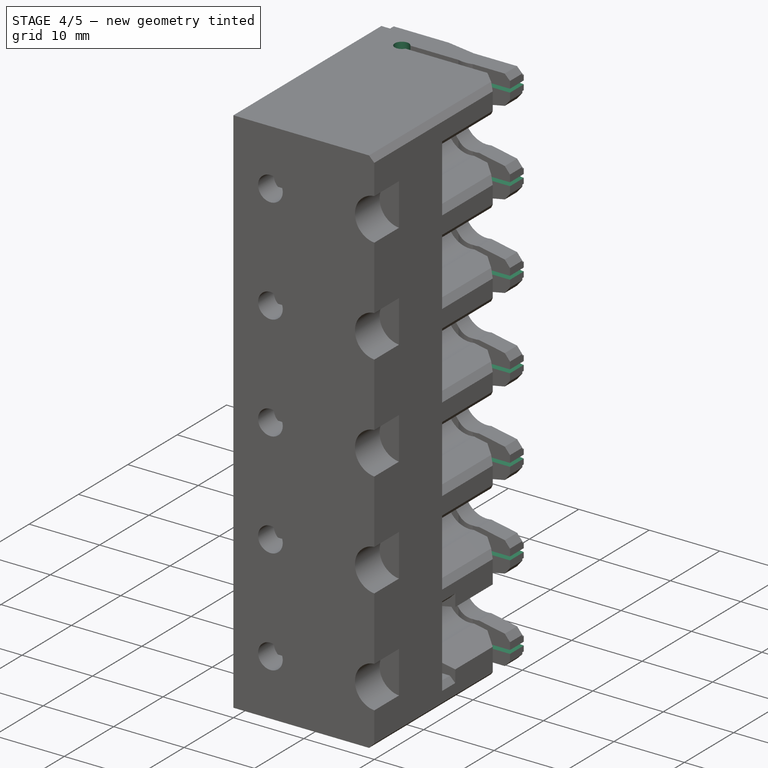
[diagram: stage 4 of 5 — iso view after this stage's code; geometry added in this stage tinted green]
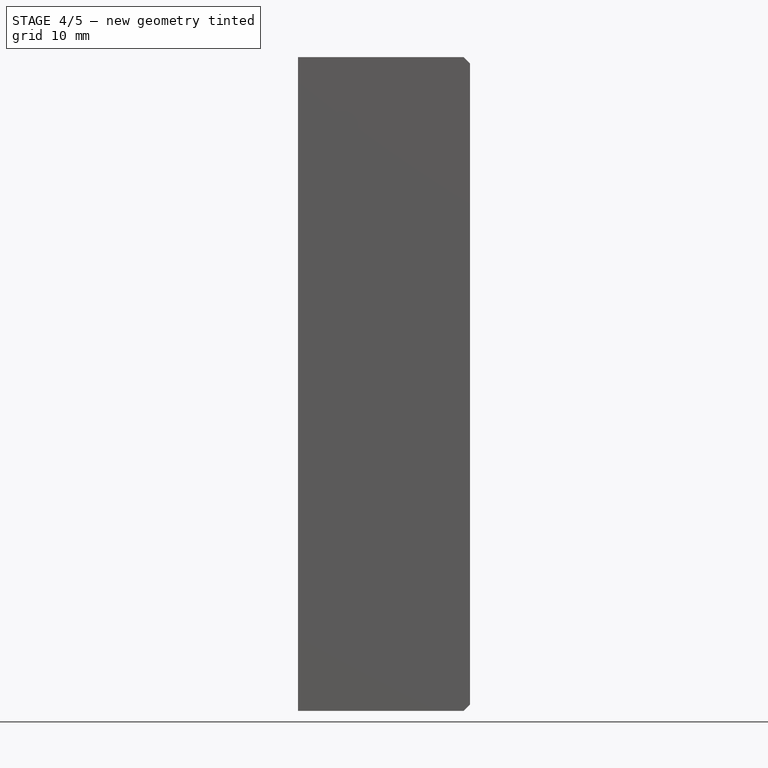
[diagram: stage 4 of 5 — front view after this stage's code; geometry added in this stage tinted green]
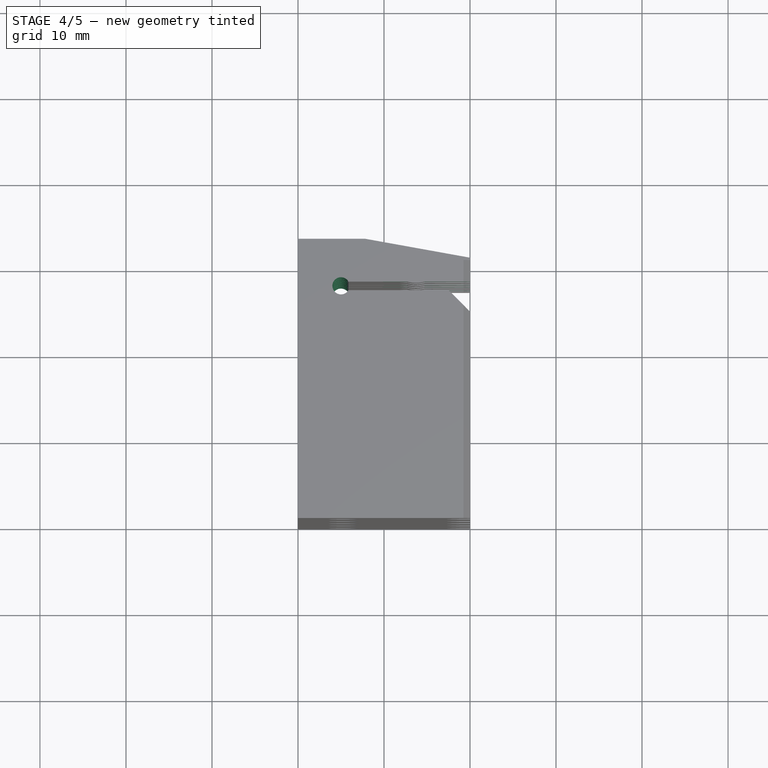
[diagram: stage 4 of 5 — top view after this stage's code; geometry added in this stage tinted green]
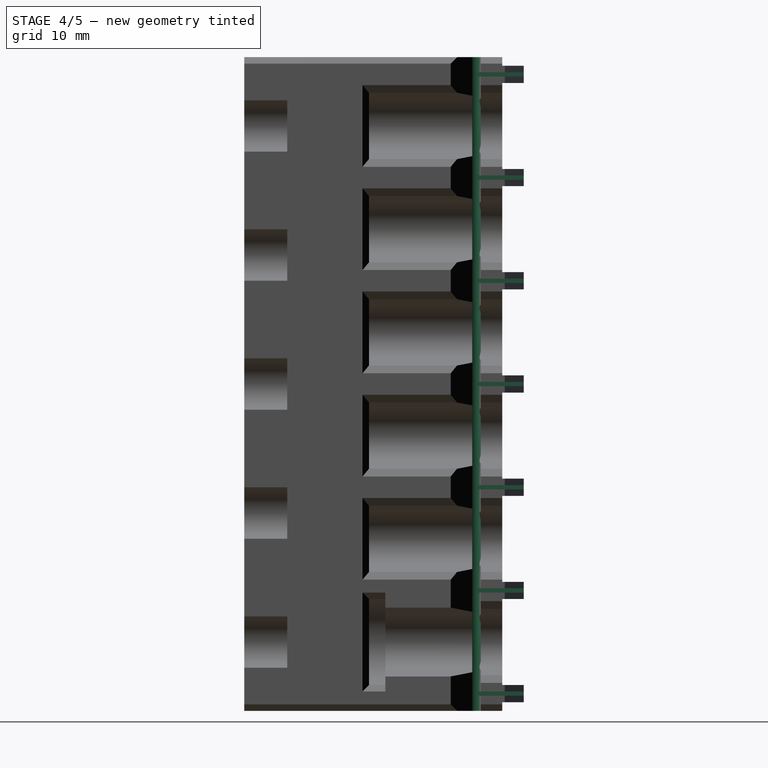
[diagram: stage 4 of 5 — right view after this stage's code; geometry added in this stage tinted green]
FEATURE [Sketcher::SketchObject] Sketch013
  ExternalGeometry = -> [Pad002]
  FullyConstrained = true
  MapMode = 5
  Support = -> [XY_Plane]
  sketch-geometry (1):
    g0: Circle CenterX=5 CenterY=27 CenterZ=0 NormalX=0 NormalY=0 NormalZ=1 AngleXU=0 Radius=1
  constraints (2):
    c: Symmetric(g-3,g-3,g0)
    c: Diameter(g0) = 2
FEATURE [PartDesign::Pocket] Pocket019
  BaseFeature = -> Pad002
  Direction = (0,0,-1)
  Length = 5
  Length2 = 5
  Profile = -> Sketch013
  ReferenceAxis = -> Sketch013 [N_Axis]
  Reversed = true
  Type = 1
FEATURE [Sketcher::SketchObject] Sketch014
  FullyConstrained = true
  MapMode = 5
  Placement = pos=(20,0,0) rot=(0.57735,0.57735,0.57735;2.0944rad)
  Support = -> [Pocket019]
  sketch-geometry (28):
    g0: LineSegment StartX=27 StartY=62.25 StartZ=0 EndX=37 EndY=62.25 EndZ=0
    g1: LineSegment StartX=37 StartY=62.25 StartZ=0 EndX=37 EndY=61.75 EndZ=0
    g2: LineSegment StartX=37 StartY=61.75 StartZ=0 EndX=27 EndY=61.75 EndZ=0
    g3: LineSegment StartX=27 StartY=61.75 StartZ=0 EndX=27 EndY=62.25 EndZ=0
    g4: LineSegment StartX=27 StartY=50.25 StartZ=0 EndX=37 EndY=50.25 EndZ=0
    g5: LineSegment StartX=37 StartY=50.25 StartZ=0 EndX=37 EndY=49.75 EndZ=0
    g6: LineSegment StartX=37 StartY=49.75 StartZ=0 EndX=27 EndY=49.75 EndZ=0
    g7: LineSegment StartX=27 StartY=49.75 StartZ=0 EndX=27 EndY=50.25 EndZ=0
    g8: LineSegment StartX=27 StartY=38.25 StartZ=0 EndX=37 EndY=38.25 EndZ=0
    g9: LineSegment StartX=37 StartY=38.25 StartZ=0 EndX=37 EndY=37.75 EndZ=0
    g10: LineSegment StartX=37 StartY=37.75 StartZ=0 EndX=27 EndY=37.75 EndZ=0
    g11: LineSegment StartX=27 StartY=37.75 StartZ=0 EndX=27 EndY=38.25 EndZ=0
    g12: LineSegment StartX=27 StartY=26.25 StartZ=0 EndX=37 EndY=26.25 EndZ=0
    g13: LineSegment StartX=37 StartY=26.25 StartZ=0 EndX=37 EndY=25.75 EndZ=0
    g14: LineSegment StartX=37 StartY=25.75 StartZ=0 EndX=27 EndY=25.75 EndZ=0
    g15: LineSegment StartX=27 StartY=25.75 StartZ=0 EndX=27 EndY=26.25 EndZ=0
    g16: LineSegment StartX=37 StartY=13.75 StartZ=0 EndX=27 EndY=13.75 EndZ=0
    g17: LineSegment StartX=27 StartY=13.75 StartZ=0 EndX=27 EndY=14.25 EndZ=0
    g18: LineSegment StartX=27 StartY=14.25 StartZ=0 EndX=37 EndY=14.25 EndZ=0
    g19: LineSegment StartX=37 StartY=14.25 StartZ=0 EndX=37 EndY=13.75 EndZ=0
    g20: LineSegment StartX=27 StartY=74.25 StartZ=0 EndX=37 EndY=74.25 EndZ=0
    g21: LineSegment StartX=37 StartY=74.25 StartZ=0 EndX=37 EndY=73.75 EndZ=0
    g22: LineSegment StartX=37 StartY=73.75 StartZ=0 EndX=27 EndY=73.75 EndZ=0
    g23: LineSegment StartX=27 StartY=73.75 StartZ=0 EndX=27 EndY=74.25 EndZ=0
    g24: LineSegment StartX=27 StartY=2.25 StartZ=0 EndX=37 EndY=2.25 EndZ=0
    g25: LineSegment StartX=37 StartY=2.25 StartZ=0 EndX=37 EndY=1.75 EndZ=0
    g26: LineSegment StartX=37 StartY=1.75 StartZ=0 EndX=27 EndY=1.75 EndZ=0
    g27: LineSegment StartX=27 StartY=1.75 StartZ=0 EndX=27 EndY=2.25 EndZ=0
  constraints (79):
    c: Coincident(g0,g1)
    c: Coincident(g1,g2)
    c: Coincident(g2,g3)
    c: Coincident(g3,g0)
    c: Horizontal(g0)
    c: Horizontal(g2)
    c: Vertical(g1)
    c: Vertical(g3)
    c: Coincident(g4,g5)
    c: Coincident(g5,g6)
    c: Coincident(g6,g7)
    c: Coincident(g7,g4)
    c: Horizontal(g4)
    c: Horizontal(g6)
    c: Vertical(g5)
    c: Vertical(g7)
    c: Coincident(g8,g9)
    c: Coincident(g9,g10)
    c: Coincident(g10,g11)
    c: Coincident(g11,g8)
    c: Horizontal(g8)
    c: Horizontal(g10)
    c: Vertical(g9)
    c: Vertical(g11)
    c: Coincident(g12,g13)
    c: Coincident(g13,g14)
    c: Coincident(g14,g15)
    c: Coincident(g15,g12)
    c: Horizontal(g12)
    c: Horizontal(g14)
    c: Vertical(g13)
    c: Vertical(g15)
    c: Coincident(g16,g17)
    c: Coincident(g17,g18)
    c: Coincident(g18,g19)
    c: Coincident(g19,g16)
    c: Horizontal(g16)
    c: Horizontal(g18)
    c: Vertical(g17)
    c: Vertical(g19)
    c: Equal(g1,g5)
    c: Equal(g5,g9)
    c: Equal(g9,g13)
    c: Equal(g13,g19)
    c: Equal(g2,g4)
    c: Equal(g4,g8)
    c: Equal(g8,g12)
    c: Equal(g12,g18)
    c: Vertical(g1,g4)
    c: Symmetric(g9,g1,g6)
    c: Symmetric(g5,g13,g10)
    c: Symmetric(g9,g16,g14)
    c: DistanceY(g5,g1) = 12
    c: DistanceY(g1,g1) = 0.5
    c: DistanceX(g-1,g16) = 27
    c: DistanceY(g-1,g16) = 13.75
    c: DistanceX(g16,g16) = 10
    c: Coincident(g20,g21)
    c: Coincident(g21,g22)
    c: Coincident(g22,g23)
    c: Coincident(g23,g20)
    c: Horizontal(g20)
    c: Horizontal(g22)
    c: Vertical(g21)
    c: Vertical(g23)
    c: DistanceY(g21,g21) = 0.5
    c: Symmetric(g21,g5,g2)
    c: Equal(g22,g2)
    c: Coincident(g24,g25)
    c: Coincident(g25,g26)
    c: Coincident(g26,g27)
    c: Coincident(g27,g24)
    c: Horizontal(g24)
    c: Horizontal(g26)
    c: Vertical(g25)
    c: Vertical(g27)
    c: Symmetric(g25,g13,g16)
    c: Equal(g25,g19)
    c: Equal(g26,g16)
FEATURE [PartDesign::Pocket] Pocket020
  BaseFeature = -> Pocket019
  Direction = (-1,0,0)
  Length = 16
  Length2 = 5
  Profile = -> Sketch014
  ReferenceAxis = -> Sketch014 [N_Axis]
  Type = 0
FEATURE [Sketcher::SketchObject] Sketch015
  FullyConstrained = false
  MapMode = 5
  Placement = pos=(20,0,0) rot=(0.57735,0.57735,0.57735;2.0944rad)
  Support = -> [Pocket020]
  sketch-geometry (8):
    g0: LineSegment StartX=10.7089 StartY=-1.18501 StartZ=0 EndX=35.6744 EndY=-1.18501 EndZ=0
    g1: LineSegment StartX=35.6744 StartY=-1.18501 StartZ=0 EndX=35.6744 EndY=29.3484 EndZ=0
    g2: LineSegment StartX=35.6744 StartY=29.3484 StartZ=0 EndX=10.7089 EndY=29.3484 EndZ=0
    g3: LineSegment StartX=10.7089 StartY=29.3484 StartZ=0 EndX=10.7089 EndY=-1.18501 EndZ=0
    g4: LineSegment StartX=-2.75757 StartY=-5.82462 StartZ=0 EndX=41.9553 EndY=-5.82462 EndZ=0
    g5: LineSegment StartX=41.9553 StartY=-5.82462 StartZ=0 EndX=41.9553 EndY=81.5274 EndZ=0
    g6: LineSegment StartX=41.9553 StartY=81.5274 StartZ=0 EndX=-2.75757 EndY=81.5274 EndZ=0
    g7: LineSegment StartX=-2.75757 StartY=81.5274 StartZ=0 EndX=-2.75757 EndY=-5.82462 EndZ=0
  constraints (16):
    c: Coincident(g0,g1)
    c: Coincident(g1,g2)
    c: Coincident(g2,g3)
    c: Coincident(g3,g0)
    c: Horizontal(g0)
    c: Horizontal(g2)
    c: Vertical(g1)
    c: Vertical(g3)
    c: Coincident(g4,g5)
    c: Coincident(g5,g6)
    c: Coincident(g6,g7)
    c: Coincident(g7,g4)
    c: Horizontal(g4)
    c: Horizontal(g6)
    c: Vertical(g5)
    c: Vertical(g7)
FEATURE [Sketcher::SketchObject] Sketch016
  ExternalGeometry = -> [Pocket020]
  FullyConstrained = true
  MapMode = 5
  Placement = pos=(0,0,0) rot=(1,0,0;3.14159rad)
  Support = -> [Pocket020]
  sketch-geometry (4):
    g0: ArcOfCircle CenterX=13.7 CenterY=-30.85 CenterZ=0 NormalX=0 NormalY=0 NormalZ=1 AngleXU=0 Radius=3.5 StartAngle=1.27697 EndAngle=1.86462
    g1: GeomPoint X=13.7 Y=-27.5 Z=0
    g2: GeomPoint X=13.7 Y=-27.35 Z=0
    g3: LineSegment StartX=12.6863 StartY=-27.5 StartZ=0 EndX=14.7137 EndY=-27.5 EndZ=0
  constraints (10):
    c: Symmetric(g-3,g-3,g1)
    c: Vertical(g0,g1)
    c: Diameter(g0) = 7
    c: PointOnObject(g2,g0)
    c: Vertical(g2,g1)
    c: DistanceY(g1,g2) = 0.15
    c: PointOnObject(g3,g-3)
    c: PointOnObject(g3,g-3)
    c: Coincident(g0,g3)
    c: Coincident(g0,g3)
FEATURE [PartDesign::Pad] Pad003
  BaseFeature = -> Pocket020
  Direction = (0,0,-1)
  Length = 10
  Length2 = 10
  Profile = -> Sketch016
  ReferenceAxis = -> Sketch016 [N_Axis]
  Type = 3
  UpToFace = -> Pocket020 [Face12]
FEATURE [PartDesign::Pocket] Pocket021
  BaseFeature = -> Pad003
  Direction = (-1,0,0)
  Length = 10
  Length2 = 5
  Profile = -> Sketch014
  ReferenceAxis = -> Sketch014 [N_Axis]
  Type = 0
FEATURE [PartDesign::Pocket] Pocket022
  BaseFeature = -> Pocket021
  Direction = (0,-1,2e-16)
  Length = 3
  Length2 = 5
  Profile = -> Sketch001
  ReferenceAxis = -> Sketch001 [N_Axis]
  Type = 0
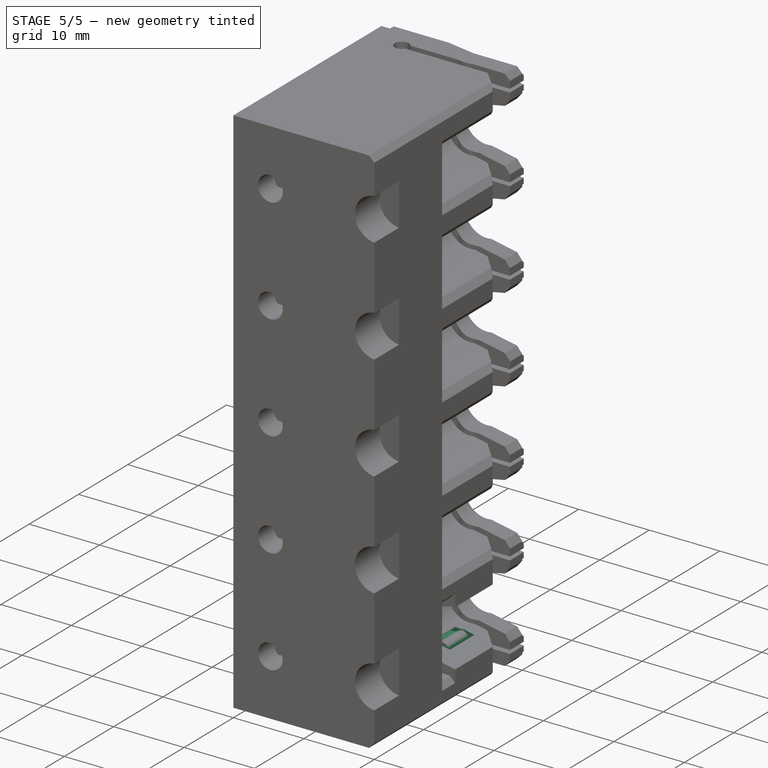
[diagram: stage 5 of 5 — iso view after this stage's code; geometry added in this stage tinted green]
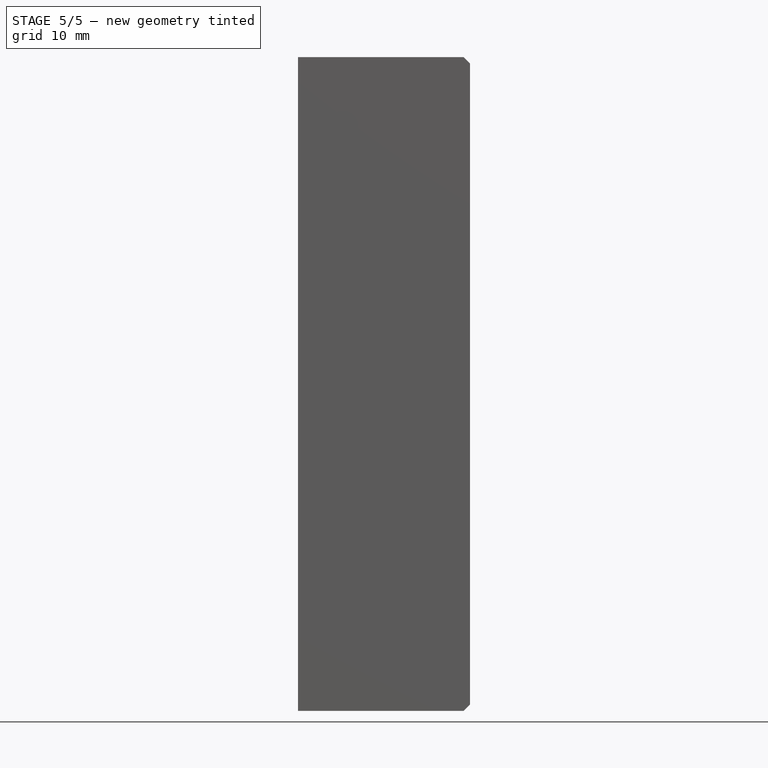
[diagram: stage 5 of 5 — front view after this stage's code; geometry added in this stage tinted green]
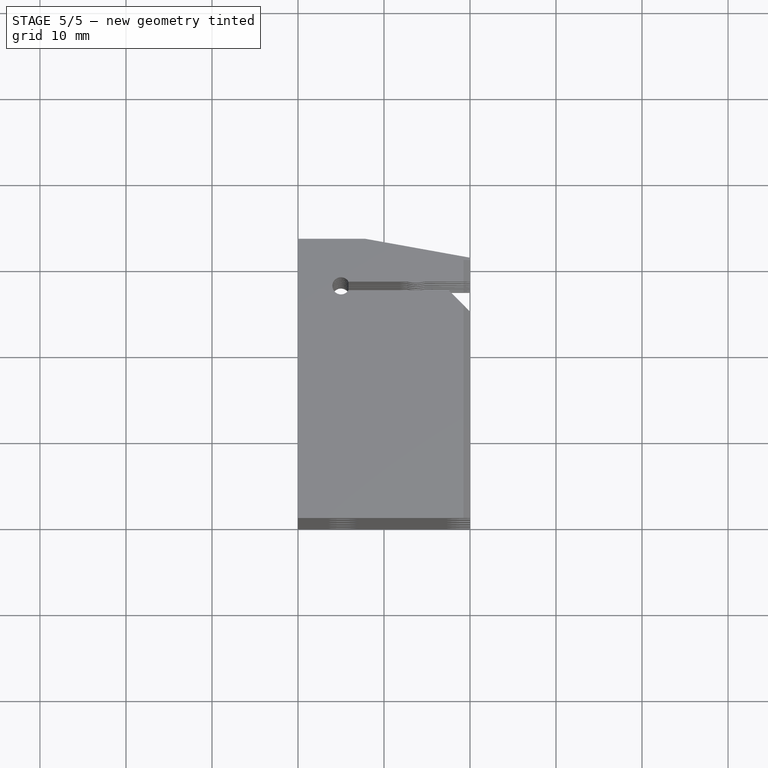
[diagram: stage 5 of 5 — top view after this stage's code; geometry added in this stage tinted green]
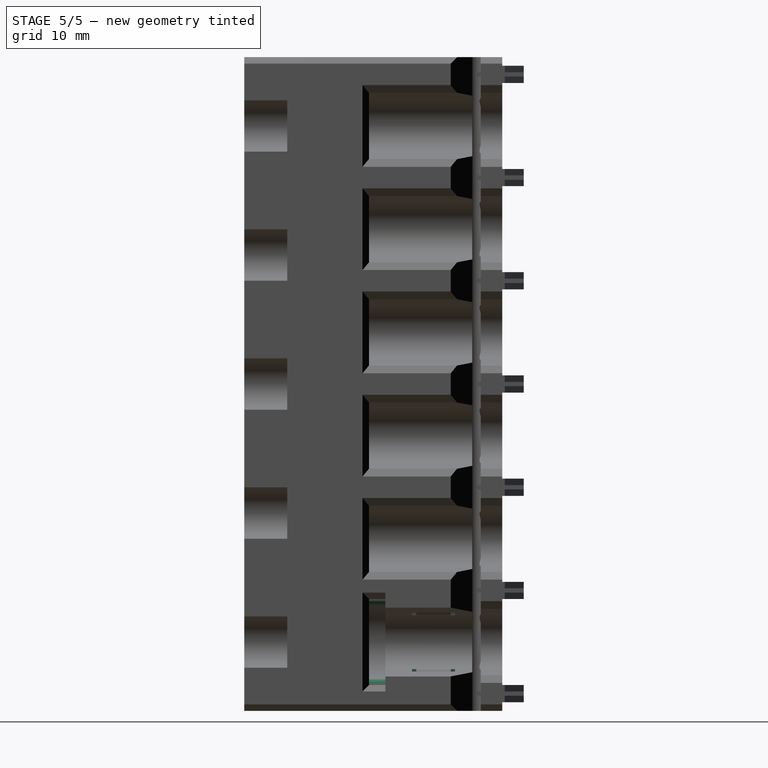
[diagram: stage 5 of 5 — right view after this stage's code; geometry added in this stage tinted green]
FEATURE [Sketcher::SketchObject] Sketch017
  ExternalGeometry = -> [Pocket022]
  FullyConstrained = false
  MapMode = 5
  Placement = pos=(0,14.5,-5.7e-15) rot=(0,0.707107,0.707107;3.14159rad)
  Support = -> [Pocket022]
  sketch-geometry (17):
    g0: Circle CenterX=-15 CenterY=8 CenterZ=0 NormalX=0 NormalY=0 NormalZ=1 AngleXU=0 Radius=3.2
    g1: Circle CenterX=-15 CenterY=8 CenterZ=0 NormalX=0 NormalY=0 NormalZ=1 AngleXU=0 Radius=4.5
    g2: ArcOfCircle CenterX=-16.229 CenterY=12.9742 CenterZ=0 NormalX=0 NormalY=0 NormalZ=1 AngleXU=0 Radius=0.629114 StartAngle=3.14159 EndAngle=6.26676
    g3: GeomPoint X=-15 Y=12.5 Z=0
    g4: GeomPoint X=-16.2342 Y=12.3451 Z=0
    g5: LineSegment StartX=-15.6 StartY=12.9639 StartZ=0 EndX=-16.8581 EndY=12.9742 EndZ=0
    g6: LineSegment StartX=-15.6 StartY=12.9639 StartZ=0 EndX=-15.5793 EndY=14.2242 EndZ=0
    g7: LineSegment StartX=-16.8581 StartY=12.9742 StartZ=0 EndX=-16.8581 EndY=14.2242 EndZ=0
    g8: LineSegment StartX=-16.8581 StartY=14.2242 StartZ=0 EndX=-11.6081 EndY=14.2242 EndZ=0
    g9: LineSegment StartX=-10.8581 StartY=13.4742 StartZ=0 EndX=-10.8581 EndY=14.2242 EndZ=0
    g10: ArcOfCircle CenterX=-11.6081 CenterY=14.9742 CenterZ=0 NormalX=0 NormalY=0 NormalZ=1 AngleXU=0 Radius=0.75 StartAngle=4.71239 EndAngle=6.28319
    g11: LineSegment StartX=-10.8581 StartY=14.2242 StartZ=0 EndX=-10.8581 EndY=14.9742 EndZ=0
    g12: LineSegment StartX=-15.0812 StartY=13.4742 StartZ=0 EndX=-10.8581 EndY=13.4742 EndZ=0
    g13: LineSegment StartX=-16.8581 StartY=12.9742 StartZ=0 EndX=-16.2342 EndY=12.3451 EndZ=0
    g14: LineSegment StartX=-16.2342 StartY=12.3451 StartZ=0 EndX=-15.6 EndY=12.9639 EndZ=0
    g15: ArcOfCircle CenterX=-15.0812 CenterY=12.9553 CenterZ=0 NormalX=0 NormalY=0 NormalZ=1 AngleXU=0 Radius=0.518852 StartAngle=1.5708 EndAngle=3.12517
    g16: GeomPoint X=-15.0812 Y=13.4742 Z=0
  constraints (46):
    c: Coincident(g0,g-3)
    c: PointOnObject(g-3,g0)
    c: Coincident(g1,g0)
    c: Diameter(g1) = 9
    c: PointOnObject(g3,g1)
    c: Vertical(g0,g3)
    c: Vertical(g2,g4)
    c: DistanceY(g4,g3) = 0.154892
    c: PointOnObject(g2,g-4)
    c: Coincident(g2,g-5)
    c: Diameter(g2) = 1.25823
    c: Coincident(g5,g-5)
    c: Coincident(g5,g2)
    c: Coincident(g6,g-5)
    c: Vertical(g7)
    c: Coincident(g8,g7)
    c: Horizontal(g8)
    c: Vertical(g9)
    c: DistanceY(g7,g7) = 1
    c: Tangent(g6,g2)
    c: DistanceY(g5,g6) = 0.25
    c: DistanceX(g8,g9) = 6
    c: Vertical(g10,g10)
    c: Horizontal(g10,g10)
    c: Coincident(g11,g9)
    c: Coincident(g11,g10)
    c: Coincident(g8,g10)
    c: Vertical(g11)
    c: Diameter(g10) = 1.5
    c: Horizontal(g9,g8)
    c: Tangent(g7,g2) = 1.5708
    c: Horizontal(g12)
    c: Coincident(g9,g12)
    c: Coincident(g13,g5)
    c: Coincident(g13,g4)
    c: Coincident(g14,g4)
    c: Coincident(g14,g5)
    c: PointOnObject(g4,g2)
    c: Equal(g14,g13)
    c: DistanceY(g16,g7) = 0.75
    c: DistanceY(g5,g16) = 0.5
    c: Tangent(g12,g15) = 1.5708
    c: PointOnObject(g6,g8)
    c: Coincident(g15,g5)
    c: Tangent(g15,g2)
    c: Coincident(g16,g12)
FEATURE [PartDesign::Plane] DatumPlane004
  AttachmentOffset = pos=(0,0,-1) rot=(0,0,1;0rad)
  Length = 64.2127
  MapMode = 5
  Placement = pos=(0,13.5,-5.2e-15) rot=(0,0.707107,0.707107;3.14159rad)
  ResizeMode = 0
  Support = -> [Pocket022]
  Width = 115.213
FEATURE [Sketcher::SketchObject] Sketch018
  FullyConstrained = false
  MapMode = 5
  Placement = pos=(0,13.5,-5.2e-15) rot=(0,0.707107,0.707107;3.14159rad)
  Support = -> [DatumPlane004]
  sketch-geometry (6):
    g0: LineSegment StartX=-10.9533 StartY=12.8585 StartZ=0 EndX=-10.9533 EndY=15.099 EndZ=0
    g1: LineSegment StartX=-10.9533 StartY=15.099 StartZ=0 EndX=-17.4408 EndY=15.099 EndZ=0
    g2: LineSegment StartX=-10.9533 StartY=12.8585 StartZ=0 EndX=-15.0996 EndY=12.8585 EndZ=0
    g3: LineSegment StartX=-17.4408 StartY=12.0737 StartZ=0 EndX=-17.4408 EndY=15.099 EndZ=0
    g4: LineSegment StartX=-17.4408 StartY=12.0737 StartZ=0 EndX=-15.0996 EndY=12.0737 EndZ=0
    g5: LineSegment StartX=-15.0996 StartY=12.0737 StartZ=0 EndX=-15.0996 EndY=12.8585 EndZ=0
  constraints (12):
    c: Vertical(g0)
    c: Coincident(g1,g0)
    c: Horizontal(g1)
    c: Coincident(g2,g0)
    c: Horizontal(g2)
    c: Coincident(g3,g1)
    c: Vertical(g3)
    c: Horizontal(g4)
    c: Coincident(g5,g4)
    c: Vertical(g5)
    c: Coincident(g2,g5)
    c: Coincident(g3,g4)
FEATURE [PartDesign::Pocket] Pocket023
  BaseFeature = -> Pocket022
  Direction = (0,-1,4e-16)
  Length = 4
  Length2 = 5
  Profile = -> Sketch018
  ReferenceAxis = -> Sketch018 [N_Axis]
  Reversed = true
  Type = 0
FEATURE [PartDesign::Pad] Pad004
  BaseFeature = -> Pocket023
  Direction = (0,1,-4e-16)
  Length = 2.7
  Length2 = 0.7
  Profile = -> Sketch017
  ReferenceAxis = -> Sketch017 [N_Axis]
  Type = 4
FEATURE [PartDesign::Plane] DatumPlane005
  AttachmentOffset = pos=(0,0,0) rot=(1,0,0;1.5708rad)
  Length = 64.1608
  MapMode = 45
  Placement = pos=(7.81129,31.0563,8) rot=(0,0,-1;0.051529rad)
  ResizeMode = 0
  Support = -> [Pad004]
  Width = 71.2551
FEATURE [PartDesign::Mirrored] Mirrored
  BaseFeature = -> Pad004
  MirrorPlane = -> DatumPlane005
  Originals = -> [Pocket023,Pad004]
FEATURE [PartDesign::Plane] DatumPlane006
  AttachmentOffset = pos=(0,0,-3) rot=(0,0,1;0rad)
  Length = 64.2127
  MapMode = 5
  Placement = pos=(0,23.5,7e-16) rot=(0,0.707107,0.707107;3.14159rad)
  ResizeMode = 0
  Support = -> [Mirrored]
  Width = 115.213
FEATURE [Sketcher::SketchObject] Sketch021
  ExternalGeometry = -> [Mirrored]
  FullyConstrained = false
  MapMode = 5
  Placement = pos=(0,23.5,7e-16) rot=(0,0.707107,0.707107;3.14159rad)
  Support = -> [DatumPlane006]
  sketch-geometry (8):
    g0: Circle CenterX=-15 CenterY=8 CenterZ=0 NormalX=0 NormalY=0 NormalZ=1 AngleXU=0 Radius=3.09
    g1: LineSegment StartX=-14.3338 StartY=10.2803 StartZ=0 EndX=-17.0682 EndY=10.2803 EndZ=0
    g2: LineSegment StartX=-17.0682 StartY=10.2803 StartZ=0 EndX=-17.0682 EndY=13.3638 EndZ=0
    g3: LineSegment StartX=-17.0682 StartY=13.3638 StartZ=0 EndX=-14.6351 EndY=13.3638 EndZ=0
    g4: LineSegment StartX=-14.3338 StartY=11.2101 StartZ=0 EndX=-14.3338 EndY=10.2803 EndZ=0
    g5: LineSegment StartX=-14.3338 StartY=11.2101 StartZ=0 EndX=-8.23652 EndY=11.2101 EndZ=0
    g6: LineSegment StartX=-8.23652 StartY=11.2101 StartZ=0 EndX=-8.23652 EndY=13.3638 EndZ=0
    g7: LineSegment StartX=-8.23652 StartY=13.3638 StartZ=0 EndX=-14.6351 EndY=13.3638 EndZ=0
  constraints (16):
    c: Coincident(g0,g-3)
    c: Diameter(g0) = 6.18
    c: Coincident(g1,g2)
    c: Coincident(g2,g3)
    c: Coincident(g4,g1)
    c: Horizontal(g1)
    c: Horizontal(g3)
    c: Vertical(g2)
    c: Vertical(g4)
    c: Coincident(g5,g6)
    c: Coincident(g6,g7)
    c: Horizontal(g5)
    c: Horizontal(g7)
    c: Vertical(g6)
    c: Coincident(g7,g3)
    c: Coincident(g5,g4)
FEATURE [Sketcher::SketchObject] Sketch022
  ExternalGeometry = -> [Mirrored]
  FullyConstrained = true
  MapMode = 5
  Placement = pos=(0,23.5,7e-16) rot=(0,0.707107,0.707107;3.14159rad)
  Support = -> [DatumPlane006]
  sketch-geometry (10):
    g0: Circle CenterX=-15 CenterY=8 CenterZ=0 NormalX=0 NormalY=0 NormalZ=1 AngleXU=0 Radius=3.1
    g1: ArcOfCircle CenterX=-15.6976 CenterY=11.8371 CenterZ=0 NormalX=0 NormalY=0 NormalZ=1 AngleXU=0 Radius=0.8 StartAngle=1.5708 EndAngle=5.31558
    g2: LineSegment StartX=-15.6976 StartY=11.8371 StartZ=0 EndX=-15.5545 EndY=11.05 EndZ=0
    g3: LineSegment StartX=-14.2511 StartY=11.4871 StartZ=0 EndX=-8.19763 EndY=11.4871 EndZ=0
    g4: LineSegment StartX=-15.6976 StartY=12.6371 StartZ=0 EndX=-9.07263 EndY=12.6371 EndZ=0
    g5: LineSegment StartX=-8.19763 StartY=11.4871 StartZ=0 EndX=-8.19763 EndY=12.4871 EndZ=0
    g6: GeomPoint X=-15 Y=11.1 Z=0
    g7: ArcOfCircle CenterX=-14.2511 CenterY=9.7371 CenterZ=0 NormalX=0 NormalY=0 NormalZ=1 AngleXU=0 Radius=1.75 StartAngle=1.5708 EndAngle=2.17399
    g8: ArcOfCircle CenterX=-9.07263 CenterY=13.5121 CenterZ=0 NormalX=0 NormalY=0 NormalZ=1 AngleXU=0 Radius=0.875 StartAngle=4.71239 EndAngle=6.28319
    g9: LineSegment StartX=-8.19763 StartY=12.4871 StartZ=0 EndX=-8.19763 EndY=13.5121 EndZ=0
  constraints (27):
    c: Coincident(g0,g-3)
    c: Diameter(g0) = 6.2
    c: Tangent(g1,g0)
    c: Coincident(g2,g1)
    c: PointOnObject(g2,g0)
    c: Perpendicular(g0,g2)
    c: Horizontal(g3)
    c: Horizontal(g4)
    c: Coincident(g5,g3)
    c: Vertical(g5)
    c: Tangent(g1,g4) = 1.5708
    c: PointOnObject(g6,g0)
    c: Vertical(g6,g0)
    c: Tangent(g1,g7) = 1.5708
    c: Tangent(g3,g7) = 1.5708
    c: DistanceY(g5,g5) = 1
    c: Diameter(g1) = 1.6
    c: DistanceX(g2,g5) = 7.5
    c: DistanceY(g2,g6) = 0.05
    c: Diameter(g7) = 3.5
    c: Horizontal(g8,g8)
    c: Coincident(g9,g5)
    c: Coincident(g9,g8)
    c: Tangent(g4,g8) = -1.5708
    c: Vertical(g9)
    c: Diameter(g8) = 1.75
    c: DistanceY(g5,g4) = 0.15
FEATURE [PartDesign::Pocket] Pocket024
  BaseFeature = -> Mirrored
  Direction = (0,-1,2e-16)
  Length = 4
  Length2 = 1
  Profile = -> Sketch021
  ReferenceAxis = -> Sketch021 [N_Axis]
  Type = 4
FEATURE [PartDesign::Pad] Pad005
  BaseFeature = -> Pocket024
  Direction = (0,1,-2e-16)
  Length = 0.5
  Length2 = 3.5
  Profile = -> Sketch022
  ReferenceAxis = -> Sketch022 [N_Axis]
  Type = 4
FEATURE [PartDesign::Mirrored] Mirrored001
  BaseFeature = -> Pad005
  MirrorPlane = -> DatumPlane005
  Originals = -> [Pocket024,Pad005]
FEATURE [PartDesign::Body] Body
  Group = -> [Sketch,Pad,Sketch001,Pocket,Pocket015,Sketch005,Pocket003,DatumPlane,DatumPlane001,Sketch006,Pocket006,Sketch007,Pad001,ShapeString002,Pocket008,ShapeString003,ShapeString004,ShapeString005,ShapeString006,ShapeString007,Pocket009,Pocket010,Pocket011,Pocket012,Pocket013,Pocket017,Chamfer,Sketch008,Sketch009,Pocket016,Sketch010,Chamfer001,DatumPlane002,DatumPlane003,Sketch011,Pad002,Sketch013,+21 more]
  Origin = -> Origin
  Tip = -> Mirrored001
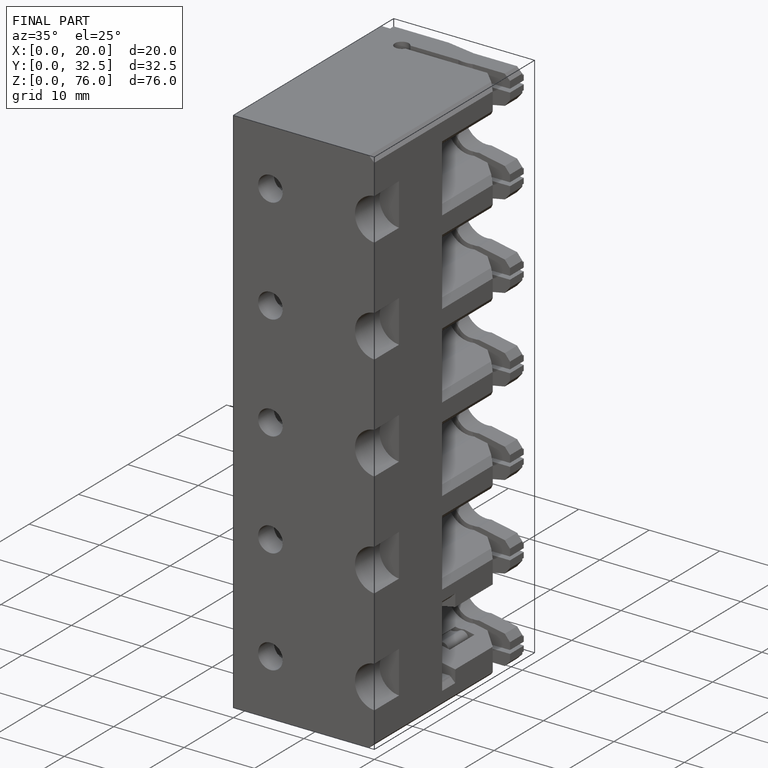
[diagram: finished part — iso view with bounding-box wireframe]
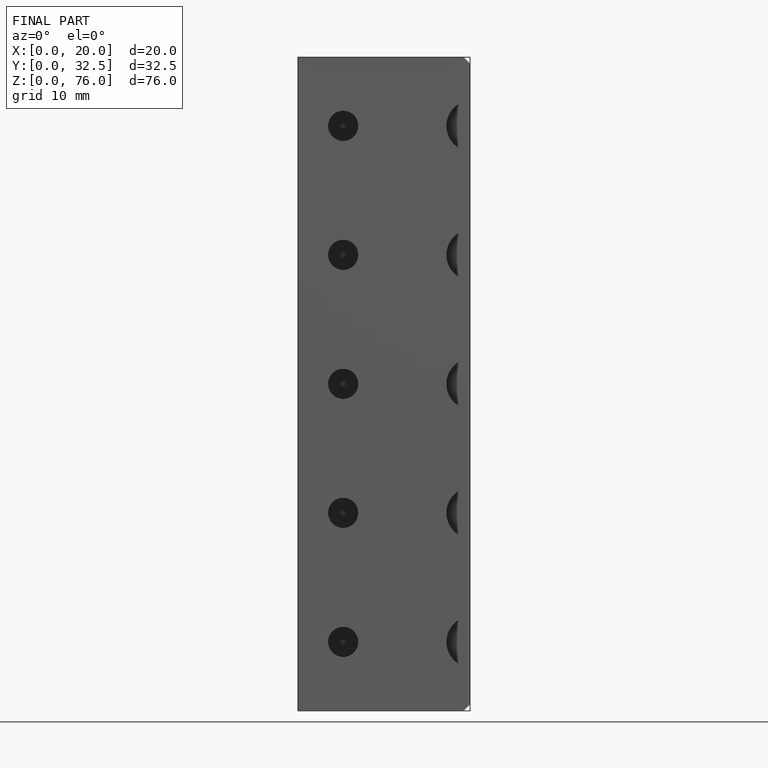
[diagram: finished part — front view with bounding-box wireframe]
